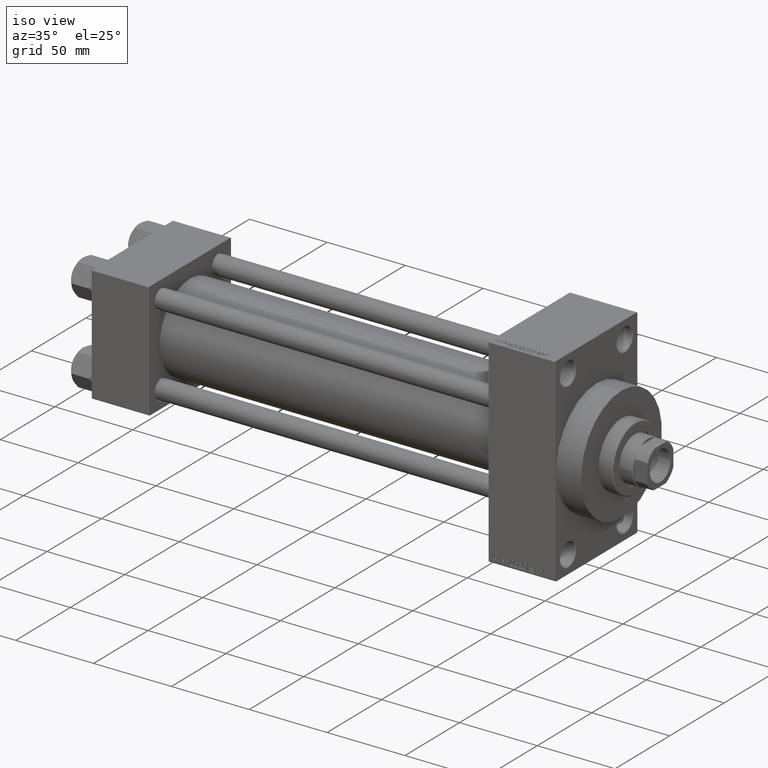
[diagram: clean part render]
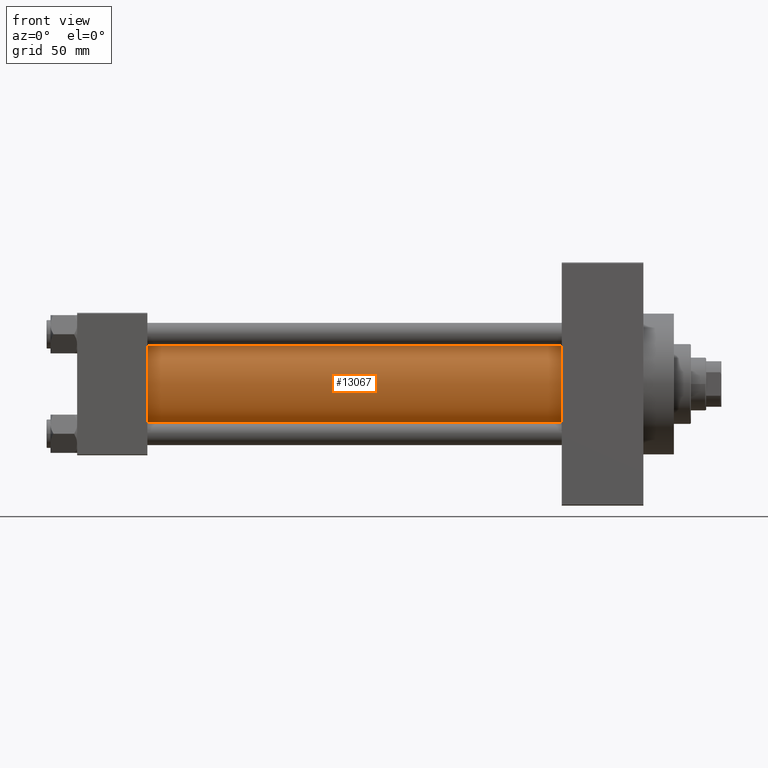
[diagram: tour spotlight — one face highlighted and labeled with its STEP entity id]
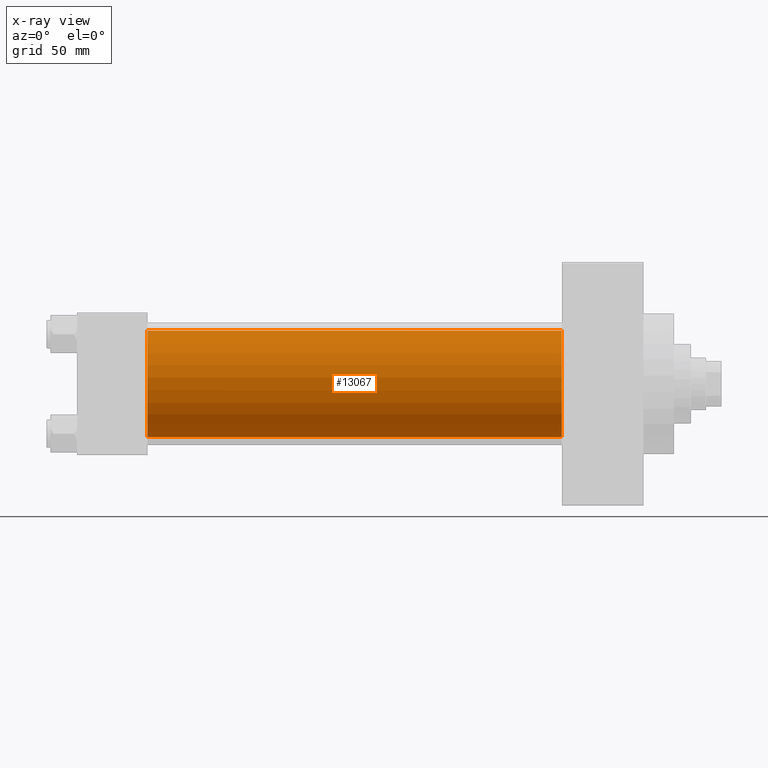
[diagram: x-ray of the same camera — body ghosted, this tour face saturated]
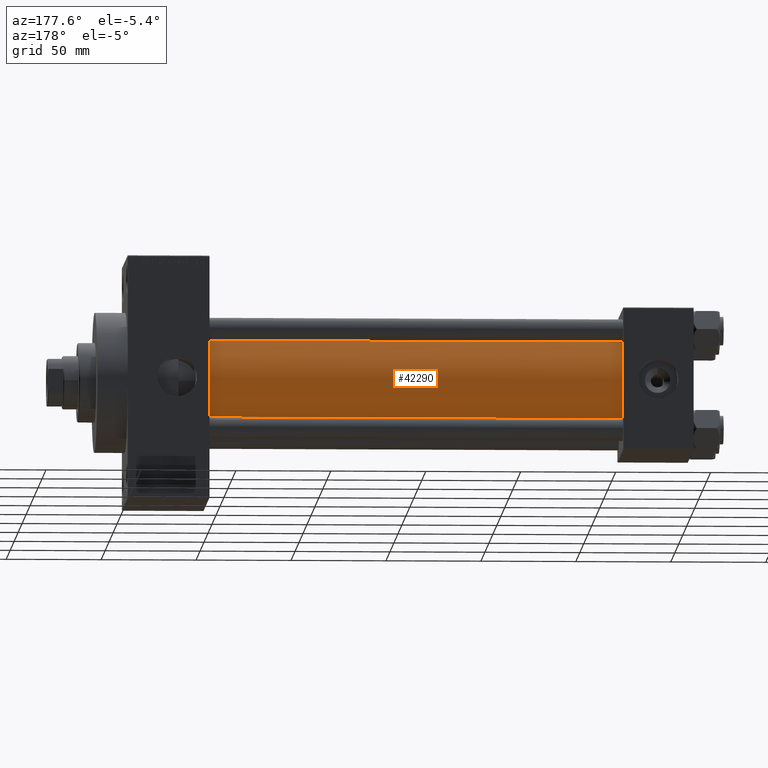
[diagram: tour spotlight — one face highlighted and labeled with its STEP entity id]
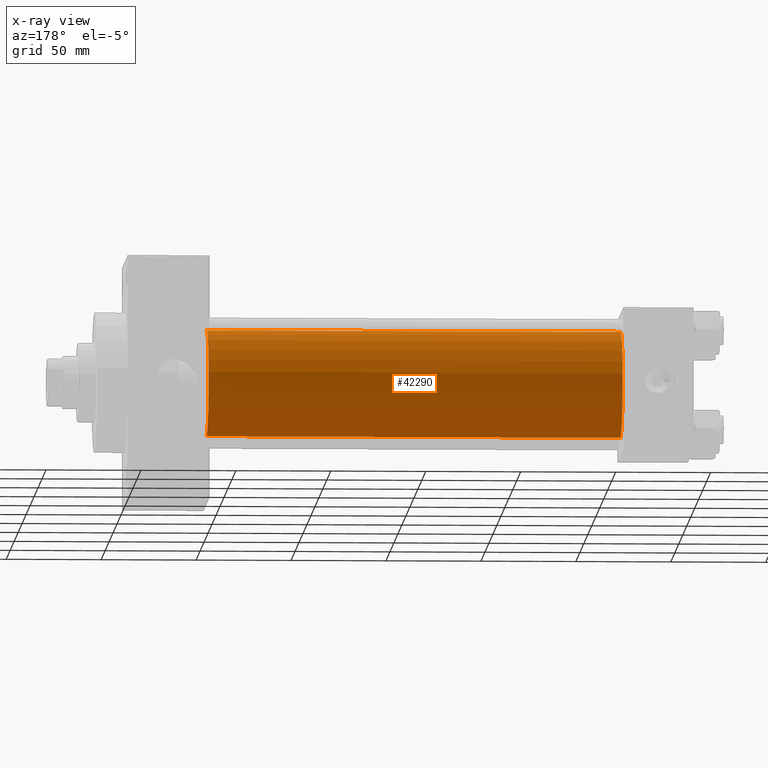
[diagram: x-ray of the same camera — body ghosted, this tour face saturated]
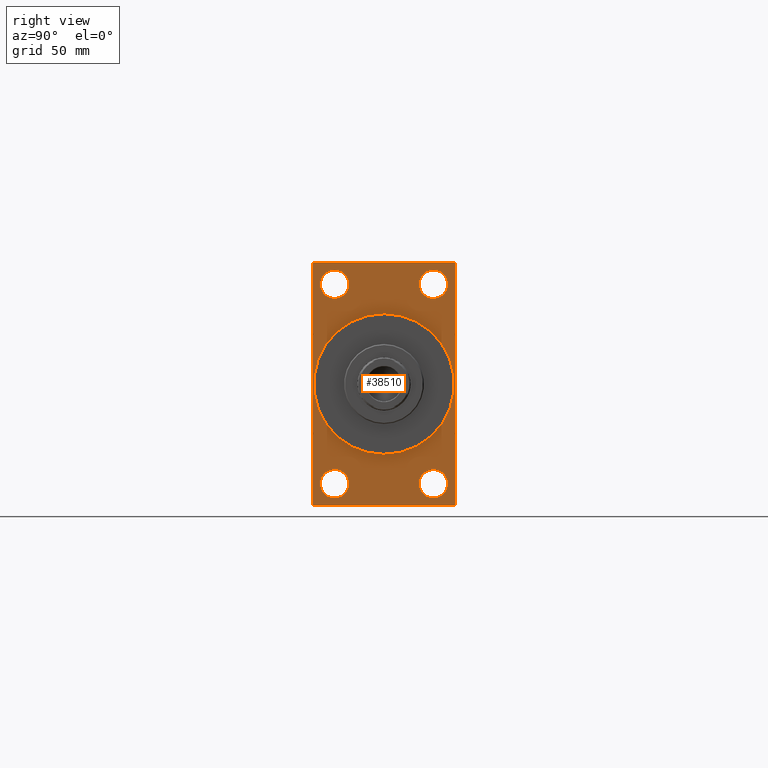
[diagram: tour spotlight — one face highlighted and labeled with its STEP entity id]
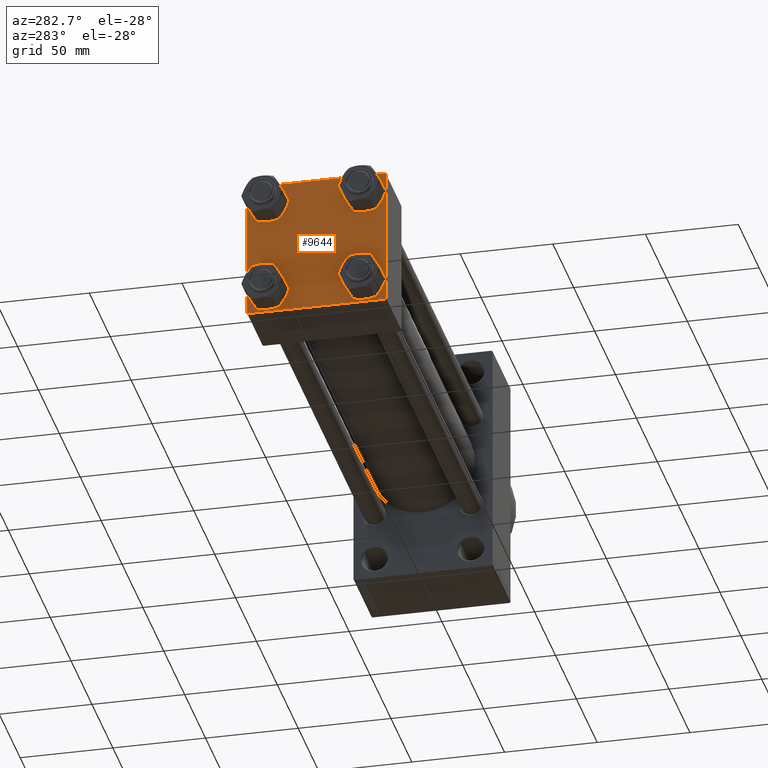
[diagram: tour spotlight — one face highlighted and labeled with its STEP entity id]
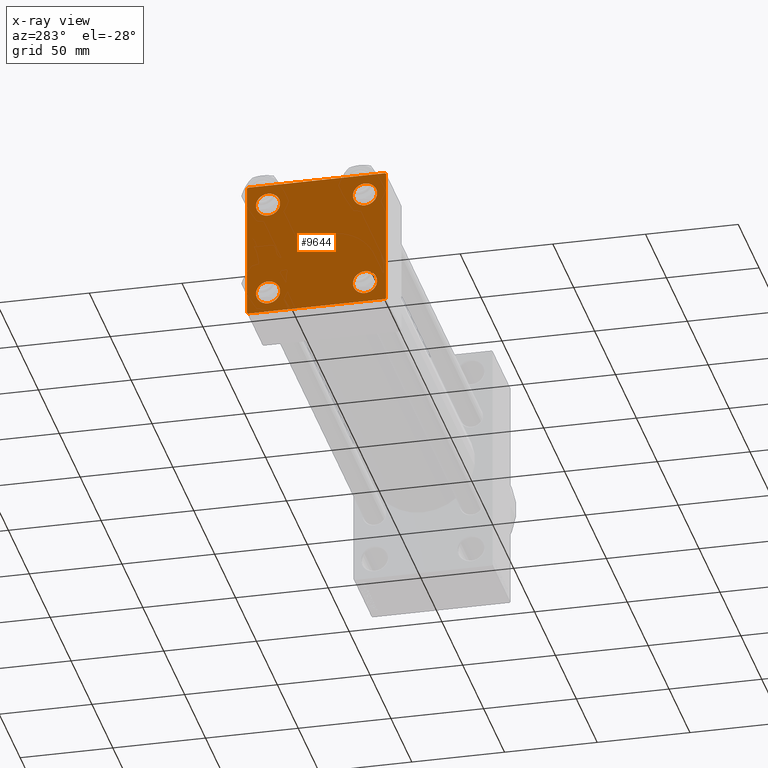
[diagram: x-ray of the same camera — body ghosted, this tour face saturated]
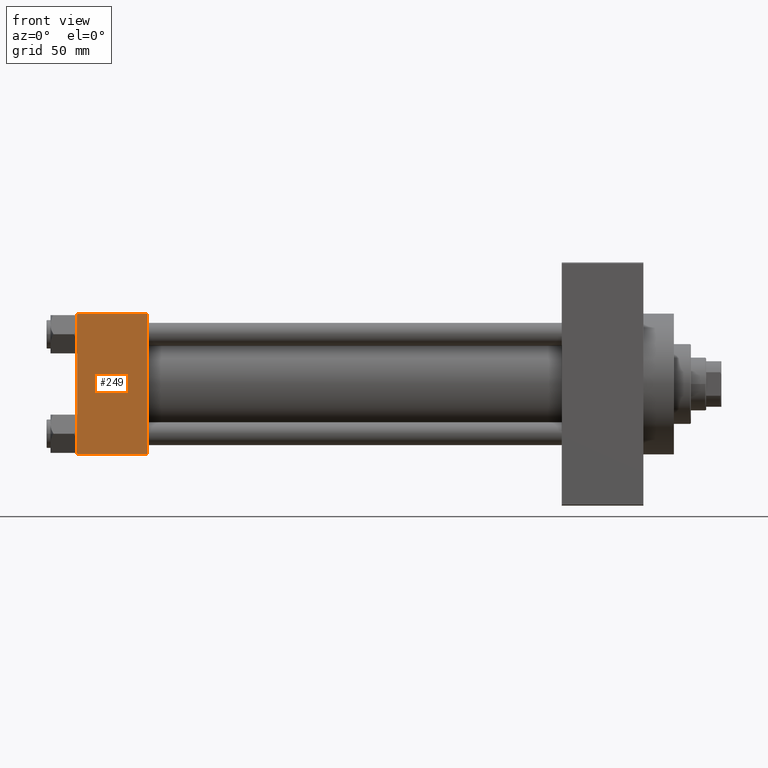
[diagram: tour spotlight — one face highlighted and labeled with its STEP entity id]
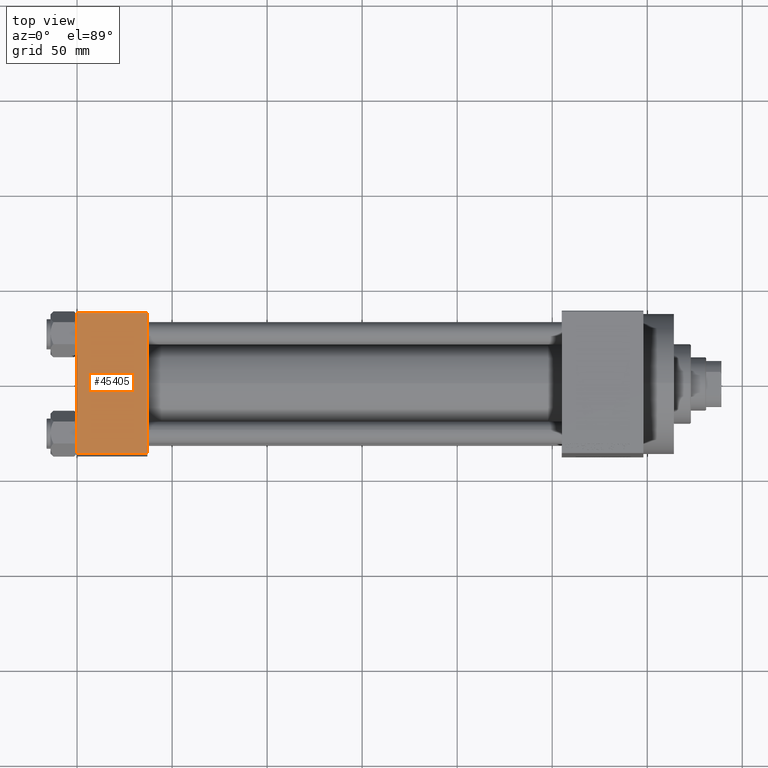
[diagram: tour spotlight — one face highlighted and labeled with its STEP entity id]
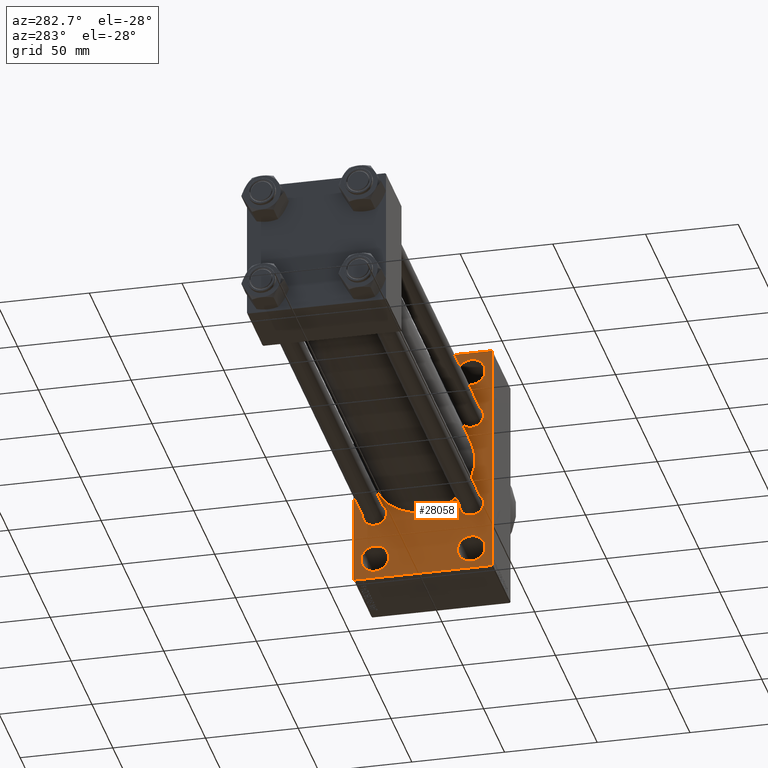
[diagram: tour spotlight — one face highlighted and labeled with its STEP entity id]
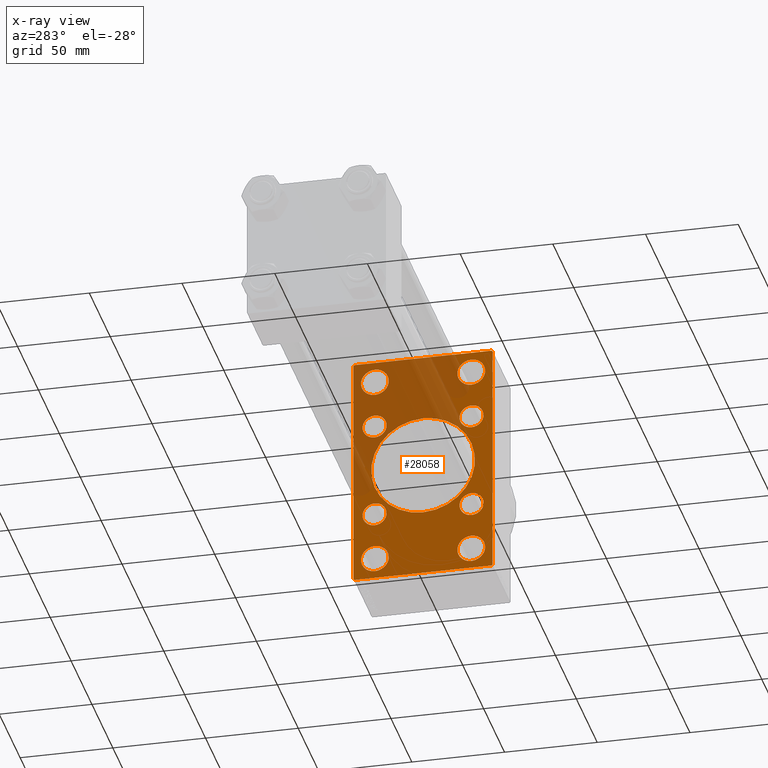
[diagram: x-ray of the same camera — body ghosted, this tour face saturated]
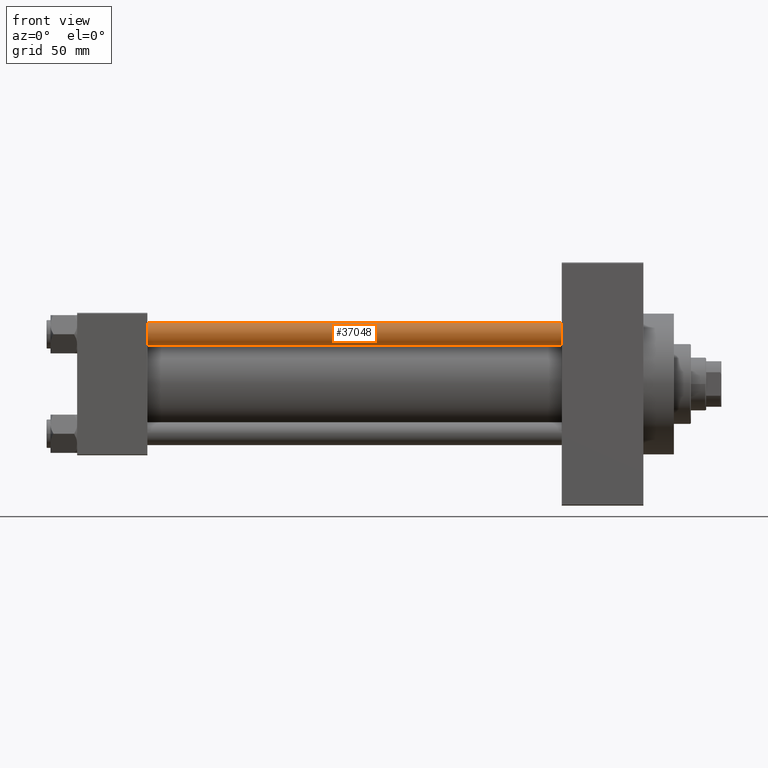
[diagram: tour spotlight — one face highlighted and labeled with its STEP entity id]
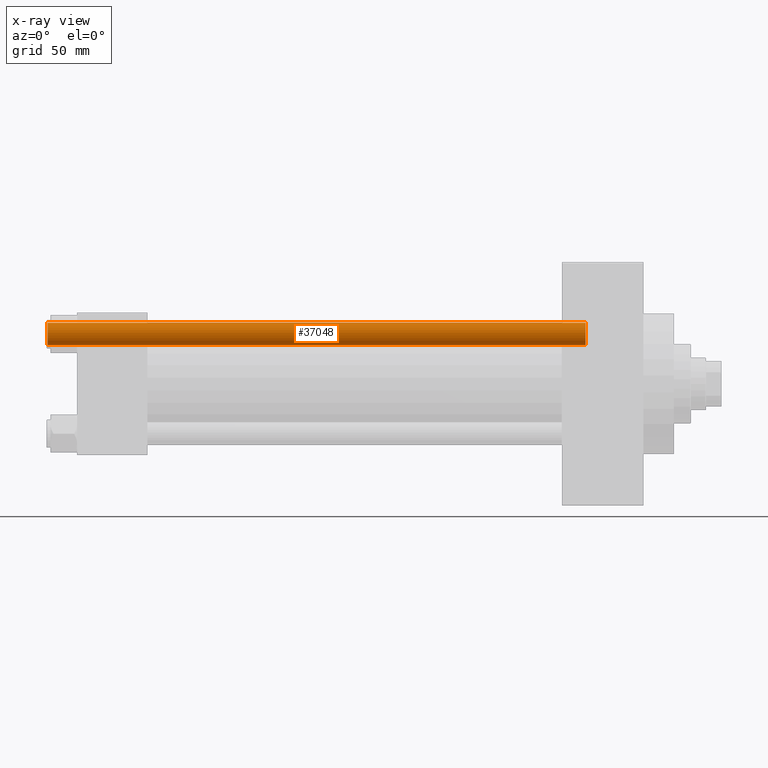
[diagram: x-ray of the same camera — body ghosted, this tour face saturated]
A machine part: a face-by-face anatomy tour. The part has 1104 B-rep faces; the first image is the clean iso view, then the 8 largest visible faces are spotlighted one at a time (largest first), each with its STEP entity span.

Face 1 — front view, entity #13067. An x-ray twin of the same camera follows (body ghosted, this face saturated) — the face is partly hidden behind the body. In plain terms, the highlighted cylindrical surface (partial cylindrical patch) has radius 28 mm, axis along (-1, -0, -0).
Definition (entity closure, byte-faithful):
#293 = CARTESIAN_POINT ( 'NONE',  ( 255.0000000000000000, -2.602085213965210642E-15, 28.00000000000000000 ) ) ;
#2420 = DIRECTION ( 'NONE',  ( 0.000000000000000000, 0.000000000000000000, 1.000000000000000000 ) ) ;
#3944 = EDGE_CURVE ( 'NONE', #41243, #34926, #43735, .T. ) ;
#4520 = EDGE_LOOP ( 'NONE', ( #6993, #34445, #27993, #32095 ) ) ;
#5079 = VERTEX_POINT ( 'NONE', #39543 ) ;
#6001 = CARTESIAN_POINT ( 'NONE',  ( 37.00000000000000711, -2.602085213965210642E-15, 0.000000000000000000 ) ) ;
#6809 = CIRCLE ( 'NONE', #44168, 28.00000000000000000 ) ;
#6993 = ORIENTED_EDGE ( 'NONE', *, *, #7240, .F. ) ;
#7240 = EDGE_CURVE ( 'NONE', #8930, #5079, #45120, .T. ) ;
#8192 = VECTOR ( 'NONE', #11040, 1000.000000000000000 ) ;
#8930 = VERTEX_POINT ( 'NONE', #42127 ) ;
#11040 = DIRECTION ( 'NONE',  ( -1.000000000000000000, -0.000000000000000000, -0.000000000000000000 ) ) ;
#11548 = CYLINDRICAL_SURFACE ( 'NONE', #21426, 28.00000000000000000 ) ;
#12267 = DIRECTION ( 'NONE',  ( -1.000000000000000000, -0.000000000000000000, -0.000000000000000000 ) ) ;
#13067 = ADVANCED_FACE ( 'NONE', ( #25872 ), #11548, .T. ) ;
#15291 = CARTESIAN_POINT ( 'NONE',  ( 37.00000000000000711, -2.602085213965210642E-15, 28.00000000000000000 ) ) ;
#21346 = CARTESIAN_POINT ( 'NONE',  ( 255.0000000000000000, -2.602085213965210642E-15, 28.00000000000000000 ) ) ;
#21426 = AXIS2_PLACEMENT_3D ( 'NONE', #33028, #12267, #23246 ) ;
#23246 = DIRECTION ( 'NONE',  ( 0.000000000000000000, 0.000000000000000000, 1.000000000000000000 ) ) ;
#24789 = DIRECTION ( 'NONE',  ( -1.000000000000000000, -0.000000000000000000, -0.000000000000000000 ) ) ;
#25872 = FACE_OUTER_BOUND ( 'NONE', #4520, .T. ) ;
#27993 = ORIENTED_EDGE ( 'NONE', *, *, #3944, .T. ) ;
#31485 = CARTESIAN_POINT ( 'NONE',  ( 255.0000000000000000, 8.269258236473784371E-16, -28.00000000000000000 ) ) ;
#32095 = ORIENTED_EDGE ( 'NONE', *, *, #38977, .T. ) ;
#32591 = AXIS2_PLACEMENT_3D ( 'NONE', #6001, #41816, #2420 ) ;
#33028 = CARTESIAN_POINT ( 'NONE',  ( 255.0000000000000000, -2.602085213965210642E-15, 0.000000000000000000 ) ) ;
#33205 = DIRECTION ( 'NONE',  ( 1.000000000000000000, 0.000000000000000000, 0.000000000000000000 ) ) ;
#34445 = ORIENTED_EDGE ( 'NONE', *, *, #46640, .F. ) ;
#34926 = VERTEX_POINT ( 'NONE', #15291 ) ;
#37489 = CARTESIAN_POINT ( 'NONE',  ( 255.0000000000000000, -2.602085213965210642E-15, 0.000000000000000000 ) ) ;
#38977 = EDGE_CURVE ( 'NONE', #34926, #5079, #44816, .T. ) ;
#39543 = CARTESIAN_POINT ( 'NONE',  ( 37.00000000000000711, 8.269258236473784371E-16, -28.00000000000000000 ) ) ;
#40848 = DIRECTION ( 'NONE',  ( 0.000000000000000000, 0.000000000000000000, -1.000000000000000000 ) ) ;
#41243 = VERTEX_POINT ( 'NONE', #21346 ) ;
#41816 = DIRECTION ( 'NONE',  ( 1.000000000000000000, -0.000000000000000000, 0.000000000000000000 ) ) ;
#42127 = CARTESIAN_POINT ( 'NONE',  ( 255.0000000000000000, 8.269258236473784371E-16, -28.00000000000000000 ) ) ;
#43735 = LINE ( 'NONE', #293, #8192 ) ;
#44168 = AXIS2_PLACEMENT_3D ( 'NONE', #37489, #33205, #40848 ) ;
#44816 = CIRCLE ( 'NONE', #32591, 28.00000000000000000 ) ;
#45120 = LINE ( 'NONE', #31485, #47189 ) ;
#46640 = EDGE_CURVE ( 'NONE', #41243, #8930, #6809, .T. ) ;
#47189 = VECTOR ( 'NONE', #24789, 1000.000000000000000 ) ;

Face 2 — auxiliary view, entity #42290. An x-ray twin of the same camera follows (body ghosted, this face saturated) — the face is partly hidden behind the body. In plain terms, the highlighted cylindrical surface (partial cylindrical patch) has radius 28 mm, axis along (-1, -0, -0).
Definition (entity closure, byte-faithful):
#255 = AXIS2_PLACEMENT_3D ( 'NONE', #46809, #24163, #28666 ) ;
#293 = CARTESIAN_POINT ( 'NONE',  ( 255.0000000000000000, -2.602085213965210642E-15, 28.00000000000000000 ) ) ;
#1173 = CIRCLE ( 'NONE', #29340, 28.00000000000000000 ) ;
#3287 = CIRCLE ( 'NONE', #255, 28.00000000000000000 ) ;
#3944 = EDGE_CURVE ( 'NONE', #41243, #34926, #43735, .T. ) ;
#5079 = VERTEX_POINT ( 'NONE', #39543 ) ;
#5312 = AXIS2_PLACEMENT_3D ( 'NONE', #29033, #42899, #7082 ) ;
#7082 = DIRECTION ( 'NONE',  ( 0.000000000000000000, 0.000000000000000000, 1.000000000000000000 ) ) ;
#7240 = EDGE_CURVE ( 'NONE', #8930, #5079, #45120, .T. ) ;
#8192 = VECTOR ( 'NONE', #11040, 1000.000000000000000 ) ;
#8930 = VERTEX_POINT ( 'NONE', #42127 ) ;
#10706 = ORIENTED_EDGE ( 'NONE', *, *, #32280, .T. ) ;
#11040 = DIRECTION ( 'NONE',  ( -1.000000000000000000, -0.000000000000000000, -0.000000000000000000 ) ) ;
#15291 = CARTESIAN_POINT ( 'NONE',  ( 37.00000000000000711, -2.602085213965210642E-15, 28.00000000000000000 ) ) ;
#15381 = ORIENTED_EDGE ( 'NONE', *, *, #3944, .F. ) ;
#17823 = CYLINDRICAL_SURFACE ( 'NONE', #5312, 28.00000000000000000 ) ;
#21127 = EDGE_CURVE ( 'NONE', #8930, #41243, #3287, .T. ) ;
#21346 = CARTESIAN_POINT ( 'NONE',  ( 255.0000000000000000, -2.602085213965210642E-15, 28.00000000000000000 ) ) ;
#24163 = DIRECTION ( 'NONE',  ( 1.000000000000000000, 0.000000000000000000, 0.000000000000000000 ) ) ;
#24789 = DIRECTION ( 'NONE',  ( -1.000000000000000000, -0.000000000000000000, -0.000000000000000000 ) ) ;
#25230 = FACE_OUTER_BOUND ( 'NONE', #28809, .T. ) ;
#28666 = DIRECTION ( 'NONE',  ( 0.000000000000000000, 0.000000000000000000, -1.000000000000000000 ) ) ;
#28809 = EDGE_LOOP ( 'NONE', ( #32971, #46996, #10706, #15381 ) ) ;
#29033 = CARTESIAN_POINT ( 'NONE',  ( 255.0000000000000000, -2.602085213965210642E-15, 0.000000000000000000 ) ) ;
#29340 = AXIS2_PLACEMENT_3D ( 'NONE', #40216, #29718, #36151 ) ;
#29718 = DIRECTION ( 'NONE',  ( 1.000000000000000000, -0.000000000000000000, 0.000000000000000000 ) ) ;
#31485 = CARTESIAN_POINT ( 'NONE',  ( 255.0000000000000000, 8.269258236473784371E-16, -28.00000000000000000 ) ) ;
#32280 = EDGE_CURVE ( 'NONE', #5079, #34926, #1173, .T. ) ;
#32971 = ORIENTED_EDGE ( 'NONE', *, *, #21127, .F. ) ;
#34926 = VERTEX_POINT ( 'NONE', #15291 ) ;
#36151 = DIRECTION ( 'NONE',  ( 0.000000000000000000, 0.000000000000000000, 1.000000000000000000 ) ) ;
#39543 = CARTESIAN_POINT ( 'NONE',  ( 37.00000000000000711, 8.269258236473784371E-16, -28.00000000000000000 ) ) ;
#40216 = CARTESIAN_POINT ( 'NONE',  ( 37.00000000000000711, -2.602085213965210642E-15, 0.000000000000000000 ) ) ;
#41243 = VERTEX_POINT ( 'NONE', #21346 ) ;
#42127 = CARTESIAN_POINT ( 'NONE',  ( 255.0000000000000000, 8.269258236473784371E-16, -28.00000000000000000 ) ) ;
#42290 = ADVANCED_FACE ( 'NONE', ( #25230 ), #17823, .T. ) ;
#42899 = DIRECTION ( 'NONE',  ( -1.000000000000000000, -0.000000000000000000, -0.000000000000000000 ) ) ;
#43735 = LINE ( 'NONE', #293, #8192 ) ;
#45120 = LINE ( 'NONE', #31485, #47189 ) ;
#46809 = CARTESIAN_POINT ( 'NONE',  ( 255.0000000000000000, -2.602085213965210642E-15, 0.000000000000000000 ) ) ;
#46996 = ORIENTED_EDGE ( 'NONE', *, *, #7240, .T. ) ;
#47189 = VECTOR ( 'NONE', #24789, 1000.000000000000000 ) ;

Face 3 — right view, entity #38510. In plain terms, the highlighted planar face has unit normal (-1, 0, 0).
Definition (entity closure, byte-faithful):
#17 = CARTESIAN_POINT ( 'NONE',  ( 298.0000000000000000, 37.49999999999999289, -63.50000000000001421 ) ) ;
#446 = VERTEX_POINT ( 'NONE', #37717 ) ;
#1097 = DIRECTION ( 'NONE',  ( 0.000000000000000000, -0.7071067811865671127, 0.7071067811865279218 ) ) ;
#1199 = EDGE_CURVE ( 'NONE', #28117, #28860, #41042, .T. ) ;
#1337 = LINE ( 'NONE', #19964, #13211 ) ;
#1362 = DIRECTION ( 'NONE',  ( 0.000000000000000000, -5.421010862427522170E-17, -1.000000000000000000 ) ) ;
#1402 = VERTEX_POINT ( 'NONE', #25014 ) ;
#1846 = CARTESIAN_POINT ( 'NONE',  ( 298.0000000000000000, -37.49999999999999289, 63.49999999999994316 ) ) ;
#1873 = LINE ( 'NONE', #16439, #43732 ) ;
#1913 = CARTESIAN_POINT ( 'NONE',  ( 298.0000000000000000, -36.99999999999995737, 63.99999999999997158 ) ) ;
#2070 = CARTESIAN_POINT ( 'NONE',  ( 298.0000000000000000, 26.00000000000000000, 45.00000000000004263 ) ) ;
#2085 = VERTEX_POINT ( 'NONE', #41339 ) ;
#2505 = DIRECTION ( 'NONE',  ( 0.000000000000000000, -1.000000000000000000, -1.850371707708594563E-16 ) ) ;
#3286 = FACE_OUTER_BOUND ( 'NONE', #26419, .T. ) ;
#3433 = DIRECTION ( 'NONE',  ( 0.000000000000000000, 0.000000000000000000, 1.000000000000000000 ) ) ;
#3528 = CARTESIAN_POINT ( 'NONE',  ( 298.0000000000000000, 0.000000000000000000, 0.000000000000000000 ) ) ;
#3748 = CARTESIAN_POINT ( 'NONE',  ( 298.0000000000000000, 26.00000000000000000, 52.49999999999999289 ) ) ;
#4761 = AXIS2_PLACEMENT_3D ( 'NONE', #42440, #13786, #46253 ) ;
#4992 = DIRECTION ( 'NONE',  ( -1.000000000000000000, 0.000000000000000000, -0.000000000000000000 ) ) ;
#5437 = CARTESIAN_POINT ( 'NONE',  ( 298.0000000000000000, 37.50000000000000000, 63.99999999999998579 ) ) ;
#6000 = AXIS2_PLACEMENT_3D ( 'NONE', #11552, #40672, #3433 ) ;
#6154 = VERTEX_POINT ( 'NONE', #7581 ) ;
#6163 = ORIENTED_EDGE ( 'NONE', *, *, #35029, .F. ) ;
#6602 = CARTESIAN_POINT ( 'NONE',  ( 298.0000000000000000, 26.00000000000000000, 52.49999999999999289 ) ) ;
#6974 = CIRCLE ( 'NONE', #27561, 37.00000000000000000 ) ;
#7102 = FACE_BOUND ( 'NONE', #32121, .T. ) ;
#7326 = DIRECTION ( 'NONE',  ( 0.000000000000000000, 0.000000000000000000, 1.000000000000000000 ) ) ;
#7581 = CARTESIAN_POINT ( 'NONE',  ( 298.0000000000000000, 26.00000000000000000, -45.00000000000004263 ) ) ;
#7611 = ORIENTED_EDGE ( 'NONE', *, *, #13847, .T. ) ;
#7620 = ORIENTED_EDGE ( 'NONE', *, *, #34658, .T. ) ;
#7674 = DIRECTION ( 'NONE',  ( -0.000000000000000000, 0.7071067811865376918, 0.7071067811865573427 ) ) ;
#7846 = AXIS2_PLACEMENT_3D ( 'NONE', #31874, #28284, #45502 ) ;
#8801 = CARTESIAN_POINT ( 'NONE',  ( 298.0000000000000000, -37.49999999999999289, 63.99999999999997158 ) ) ;
#9294 = EDGE_CURVE ( 'NONE', #45746, #41026, #41916, .T. ) ;
#9714 = AXIS2_PLACEMENT_3D ( 'NONE', #3528, #24315, #18086 ) ;
#9723 = DIRECTION ( 'NONE',  ( 0.000000000000000000, 0.000000000000000000, 1.000000000000000000 ) ) ;
#9839 = EDGE_CURVE ( 'NONE', #6154, #446, #44204, .T. ) ;
#10223 = FACE_BOUND ( 'NONE', #22852, .T. ) ;
#10409 = VERTEX_POINT ( 'NONE', #19925 ) ;
#10455 = LINE ( 'NONE', #28587, #31723 ) ;
#10662 = AXIS2_PLACEMENT_3D ( 'NONE', #42449, #16684, #17379 ) ;
#11325 = EDGE_LOOP ( 'NONE', ( #31217, #46282 ) ) ;
#11552 = CARTESIAN_POINT ( 'NONE',  ( 298.0000000000000000, -25.99999999999999645, 52.50000000000000000 ) ) ;
#11668 = CARTESIAN_POINT ( 'NONE',  ( 298.0000000000000000, -25.99999999999999645, -45.00000000000004263 ) ) ;
#12284 = ORIENTED_EDGE ( 'NONE', *, *, #9294, .T. ) ;
#13057 = EDGE_LOOP ( 'NONE', ( #17483, #34834 ) ) ;
#13082 = VECTOR ( 'NONE', #2505, 1000.000000000000000 ) ;
#13211 = VECTOR ( 'NONE', #1097, 1000.000000000000000 ) ;
#13459 = AXIS2_PLACEMENT_3D ( 'NONE', #43277, #17984, #21332 ) ;
#13753 = EDGE_CURVE ( 'NONE', #28860, #28117, #6974, .T. ) ;
#13786 = DIRECTION ( 'NONE',  ( -1.000000000000000000, 0.000000000000000000, -0.000000000000000000 ) ) ;
#13787 = ORIENTED_EDGE ( 'NONE', *, *, #36298, .T. ) ;
#13804 = DIRECTION ( 'NONE',  ( 0.000000000000000000, -1.000000000000000000, -1.850371707708594563E-16 ) ) ;
#13847 = EDGE_CURVE ( 'NONE', #2085, #44818, #24229, .T. ) ;
#14822 = LINE ( 'NONE', #17, #16632 ) ;
#14892 = EDGE_CURVE ( 'NONE', #46852, #27860, #31415, .T. ) ;
#14984 = EDGE_CURVE ( 'NONE', #35971, #38546, #37515, .T. ) ;
#16439 = CARTESIAN_POINT ( 'NONE',  ( 298.0000000000000000, -37.49999999999999289, 63.49999999999994316 ) ) ;
#16632 = VECTOR ( 'NONE', #7674, 1000.000000000000114 ) ;
#16684 = DIRECTION ( 'NONE',  ( -1.000000000000000000, 0.000000000000000000, -0.000000000000000000 ) ) ;
#16733 = EDGE_CURVE ( 'NONE', #446, #6154, #40516, .T. ) ;
#16776 = CARTESIAN_POINT ( 'NONE',  ( 298.0000000000000000, -36.99999999999999289, -64.00000000000001421 ) ) ;
#17379 = DIRECTION ( 'NONE',  ( 0.000000000000000000, 0.000000000000000000, 1.000000000000000000 ) ) ;
#17483 = ORIENTED_EDGE ( 'NONE', *, *, #16733, .T. ) ;
#17883 = CARTESIAN_POINT ( 'NONE',  ( 298.0000000000000000, -25.99999999999999645, 59.99999999999995026 ) ) ;
#17984 = DIRECTION ( 'NONE',  ( -1.000000000000000000, 0.000000000000000000, -0.000000000000000000 ) ) ;
#17989 = VECTOR ( 'NONE', #28667, 1000.000000000000000 ) ;
#18086 = DIRECTION ( 'NONE',  ( -0.000000000000000000, 0.000000000000000000, 1.000000000000000000 ) ) ;
#18916 = VERTEX_POINT ( 'NONE', #28482 ) ;
#19521 = LINE ( 'NONE', #5437, #24104 ) ;
#19749 = EDGE_CURVE ( 'NONE', #38546, #35971, #34517, .T. ) ;
#19785 = ORIENTED_EDGE ( 'NONE', *, *, #14892, .T. ) ;
#19910 = DIRECTION ( 'NONE',  ( -1.000000000000000000, 0.000000000000000000, -0.000000000000000000 ) ) ;
#19925 = CARTESIAN_POINT ( 'NONE',  ( 298.0000000000000000, -37.49999999999999289, -63.50000000000002842 ) ) ;
#19964 = CARTESIAN_POINT ( 'NONE',  ( 298.0000000000000000, 36.99999999999991473, 63.99999999999998579 ) ) ;
#20657 = CARTESIAN_POINT ( 'NONE',  ( 298.0000000000000000, 37.50000000000000000, 63.99999999999998579 ) ) ;
#20709 = EDGE_CURVE ( 'NONE', #18916, #2085, #1337, .T. ) ;
#21136 = EDGE_LOOP ( 'NONE', ( #40904, #31972 ) ) ;
#21332 = DIRECTION ( 'NONE',  ( 0.000000000000000000, 0.000000000000000000, 1.000000000000000000 ) ) ;
#21551 = AXIS2_PLACEMENT_3D ( 'NONE', #6602, #28779, #9723 ) ;
#21664 = FACE_BOUND ( 'NONE', #11325, .T. ) ;
#21716 = EDGE_CURVE ( 'NONE', #36081, #10409, #37898, .T. ) ;
#22247 = ORIENTED_EDGE ( 'NONE', *, *, #41355, .T. ) ;
#22691 = EDGE_CURVE ( 'NONE', #44818, #36081, #1873, .T. ) ;
#22852 = EDGE_LOOP ( 'NONE', ( #13787, #19785 ) ) ;
#23939 = LINE ( 'NONE', #16776, #17989 ) ;
#24104 = VECTOR ( 'NONE', #1362, 1000.000000000000000 ) ;
#24229 = LINE ( 'NONE', #20657, #13082 ) ;
#24266 = AXIS2_PLACEMENT_3D ( 'NONE', #43708, #47052, #32729 ) ;
#24315 = DIRECTION ( 'NONE',  ( -1.000000000000000000, 0.000000000000000000, -0.000000000000000000 ) ) ;
#24697 = CARTESIAN_POINT ( 'NONE',  ( 298.0000000000000000, 0.000000000000000000, 0.000000000000000000 ) ) ;
#25014 = CARTESIAN_POINT ( 'NONE',  ( 298.0000000000000000, 37.49999999999999289, -63.50000000000001421 ) ) ;
#25485 = CARTESIAN_POINT ( 'NONE',  ( 298.0000000000000000, 26.00000000000000000, 59.99999999999994316 ) ) ;
#26419 = EDGE_LOOP ( 'NONE', ( #37388, #7620, #6163, #26440, #35507, #39195, #7611, #27470 ) ) ;
#26440 = ORIENTED_EDGE ( 'NONE', *, *, #40656, .T. ) ;
#27141 = CARTESIAN_POINT ( 'NONE',  ( 298.0000000000000000, -36.99999999999999289, -64.00000000000001421 ) ) ;
#27470 = ORIENTED_EDGE ( 'NONE', *, *, #22691, .T. ) ;
#27561 = AXIS2_PLACEMENT_3D ( 'NONE', #24697, #27573, #42139 ) ;
#27573 = DIRECTION ( 'NONE',  ( 1.000000000000000000, 0.000000000000000000, 0.000000000000000000 ) ) ;
#27860 = VERTEX_POINT ( 'NONE', #45412 ) ;
#28117 = VERTEX_POINT ( 'NONE', #44422 ) ;
#28284 = DIRECTION ( 'NONE',  ( -1.000000000000000000, 0.000000000000000000, -0.000000000000000000 ) ) ;
#28482 = CARTESIAN_POINT ( 'NONE',  ( 298.0000000000000000, 37.50000000000000000, 63.49999999999992895 ) ) ;
#28587 = CARTESIAN_POINT ( 'NONE',  ( 298.0000000000000000, 37.49999999999999289, -64.00000000000000000 ) ) ;
#28667 = DIRECTION ( 'NONE',  ( 0.000000000000000000, 0.7071067811865573427, -0.7071067811865378028 ) ) ;
#28779 = DIRECTION ( 'NONE',  ( -1.000000000000000000, 0.000000000000000000, -0.000000000000000000 ) ) ;
#28860 = VERTEX_POINT ( 'NONE', #30335 ) ;
#30059 = CARTESIAN_POINT ( 'NONE',  ( 298.0000000000000000, 37.00000000000002132, -64.00000000000000000 ) ) ;
#30335 = CARTESIAN_POINT ( 'NONE',  ( 298.0000000000000000, 0.000000000000000000, 37.00000000000000000 ) ) ;
#30529 = DIRECTION ( 'NONE',  ( -0.000000000000000000, -0.7071067811865524577, -0.7071067811865426878 ) ) ;
#31217 = ORIENTED_EDGE ( 'NONE', *, *, #14984, .T. ) ;
#31415 = CIRCLE ( 'NONE', #4761, 7.499999999999951150 ) ;
#31627 = EDGE_CURVE ( 'NONE', #18916, #1402, #19521, .T. ) ;
#31723 = VECTOR ( 'NONE', #13804, 1000.000000000000000 ) ;
#31874 = CARTESIAN_POINT ( 'NONE',  ( 298.0000000000000000, 26.00000000000000000, -52.49999999999999289 ) ) ;
#31972 = ORIENTED_EDGE ( 'NONE', *, *, #1199, .F. ) ;
#32121 = EDGE_LOOP ( 'NONE', ( #22247, #12284 ) ) ;
#32729 = DIRECTION ( 'NONE',  ( 0.000000000000000000, 0.000000000000000000, -1.000000000000000000 ) ) ;
#33071 = VECTOR ( 'NONE', #37435, 1000.000000000000000 ) ;
#34517 = CIRCLE ( 'NONE', #21551, 7.499999999999951150 ) ;
#34560 = CARTESIAN_POINT ( 'NONE',  ( 298.0000000000000000, -25.99999999999999645, 52.50000000000000000 ) ) ;
#34658 = EDGE_CURVE ( 'NONE', #10409, #35230, #23939, .T. ) ;
#34834 = ORIENTED_EDGE ( 'NONE', *, *, #9839, .T. ) ;
#35029 = EDGE_CURVE ( 'NONE', #42917, #35230, #10455, .T. ) ;
#35230 = VERTEX_POINT ( 'NONE', #27141 ) ;
#35507 = ORIENTED_EDGE ( 'NONE', *, *, #31627, .F. ) ;
#35971 = VERTEX_POINT ( 'NONE', #2070 ) ;
#35978 = FACE_BOUND ( 'NONE', #13057, .T. ) ;
#36081 = VERTEX_POINT ( 'NONE', #1846 ) ;
#36208 = PLANE ( 'NONE',  #9714 ) ;
#36298 = EDGE_CURVE ( 'NONE', #27860, #46852, #46979, .T. ) ;
#36752 = AXIS2_PLACEMENT_3D ( 'NONE', #3748, #19910, #7326 ) ;
#37388 = ORIENTED_EDGE ( 'NONE', *, *, #21716, .T. ) ;
#37435 = DIRECTION ( 'NONE',  ( 0.000000000000000000, 0.000000000000000000, -1.000000000000000000 ) ) ;
#37515 = CIRCLE ( 'NONE', #36752, 7.499999999999951150 ) ;
#37660 = DIRECTION ( 'NONE',  ( 0.000000000000000000, 0.000000000000000000, 1.000000000000000000 ) ) ;
#37717 = CARTESIAN_POINT ( 'NONE',  ( 298.0000000000000000, 26.00000000000000000, -59.99999999999994316 ) ) ;
#37898 = LINE ( 'NONE', #8801, #33071 ) ;
#38510 = ADVANCED_FACE ( 'NONE', ( #7102, #10223, #35978, #21664, #46964, #3286 ), #36208, .F. ) ;
#38546 = VERTEX_POINT ( 'NONE', #25485 ) ;
#39195 = ORIENTED_EDGE ( 'NONE', *, *, #20709, .T. ) ;
#40516 = CIRCLE ( 'NONE', #7846, 7.499999999999951150 ) ;
#40656 = EDGE_CURVE ( 'NONE', #42917, #1402, #14822, .T. ) ;
#40672 = DIRECTION ( 'NONE',  ( -1.000000000000000000, 0.000000000000000000, -0.000000000000000000 ) ) ;
#40904 = ORIENTED_EDGE ( 'NONE', *, *, #13753, .F. ) ;
#41026 = VERTEX_POINT ( 'NONE', #45485 ) ;
#41042 = CIRCLE ( 'NONE', #24266, 37.00000000000000000 ) ;
#41339 = CARTESIAN_POINT ( 'NONE',  ( 298.0000000000000000, 36.99999999999991473, 63.99999999999998579 ) ) ;
#41355 = EDGE_CURVE ( 'NONE', #41026, #45746, #45635, .T. ) ;
#41916 = CIRCLE ( 'NONE', #43434, 7.499999999999951150 ) ;
#42139 = DIRECTION ( 'NONE',  ( 0.000000000000000000, 0.000000000000000000, -1.000000000000000000 ) ) ;
#42440 = CARTESIAN_POINT ( 'NONE',  ( 298.0000000000000000, -25.99999999999999645, -52.49999999999999289 ) ) ;
#42449 = CARTESIAN_POINT ( 'NONE',  ( 298.0000000000000000, 26.00000000000000000, -52.49999999999999289 ) ) ;
#42917 = VERTEX_POINT ( 'NONE', #30059 ) ;
#43277 = CARTESIAN_POINT ( 'NONE',  ( 298.0000000000000000, -25.99999999999999645, -52.49999999999999289 ) ) ;
#43434 = AXIS2_PLACEMENT_3D ( 'NONE', #34560, #4992, #37660 ) ;
#43708 = CARTESIAN_POINT ( 'NONE',  ( 298.0000000000000000, 0.000000000000000000, 0.000000000000000000 ) ) ;
#43732 = VECTOR ( 'NONE', #30529, 1000.000000000000000 ) ;
#44204 = CIRCLE ( 'NONE', #10662, 7.499999999999951150 ) ;
#44422 = CARTESIAN_POINT ( 'NONE',  ( 298.0000000000000000, 4.531193156845206793E-15, -37.00000000000000000 ) ) ;
#44818 = VERTEX_POINT ( 'NONE', #1913 ) ;
#45412 = CARTESIAN_POINT ( 'NONE',  ( 298.0000000000000000, -25.99999999999999645, -59.99999999999994316 ) ) ;
#45485 = CARTESIAN_POINT ( 'NONE',  ( 298.0000000000000000, -25.99999999999999645, 45.00000000000004974 ) ) ;
#45502 = DIRECTION ( 'NONE',  ( 0.000000000000000000, 0.000000000000000000, 1.000000000000000000 ) ) ;
#45635 = CIRCLE ( 'NONE', #6000, 7.499999999999951150 ) ;
#45746 = VERTEX_POINT ( 'NONE', #17883 ) ;
#46253 = DIRECTION ( 'NONE',  ( 0.000000000000000000, 0.000000000000000000, 1.000000000000000000 ) ) ;
#46282 = ORIENTED_EDGE ( 'NONE', *, *, #19749, .T. ) ;
#46852 = VERTEX_POINT ( 'NONE', #11668 ) ;
#46964 = FACE_BOUND ( 'NONE', #21136, .T. ) ;
#46979 = CIRCLE ( 'NONE', #13459, 7.499999999999951150 ) ;
#47052 = DIRECTION ( 'NONE',  ( 1.000000000000000000, 0.000000000000000000, 0.000000000000000000 ) ) ;

Face 4 — auxiliary view, entity #9644. An x-ray twin of the same camera follows (body ghosted, this face saturated) — the face is partly hidden behind the body. In plain terms, the highlighted planar face has unit normal (-1, 0, 0).
Definition (entity closure, byte-faithful):
#314 = ORIENTED_EDGE ( 'NONE', *, *, #13761, .T. ) ;
#625 = VERTEX_POINT ( 'NONE', #30803 ) ;
#1136 = DIRECTION ( 'NONE',  ( 0.000000000000000000, 0.000000000000000000, 1.000000000000000000 ) ) ;
#1653 = DIRECTION ( 'NONE',  ( -0.000000000000000000, 0.000000000000000000, 1.000000000000000000 ) ) ;
#2040 = EDGE_CURVE ( 'NONE', #37599, #17432, #5303, .T. ) ;
#2596 = CARTESIAN_POINT ( 'NONE',  ( 0.000000000000000000, -37.50000000000000711, 37.49999999999999289 ) ) ;
#2850 = CARTESIAN_POINT ( 'NONE',  ( 0.000000000000000000, -26.14999999999999147, 32.65000000000003411 ) ) ;
#3719 = EDGE_CURVE ( 'NONE', #30225, #19381, #12004, .T. ) ;
#4135 = FACE_BOUND ( 'NONE', #46481, .T. ) ;
#4165 = VERTEX_POINT ( 'NONE', #2850 ) ;
#4905 = DIRECTION ( 'NONE',  ( 1.000000000000000000, -0.000000000000000000, 0.000000000000000000 ) ) ;
#5303 = LINE ( 'NONE', #31293, #15900 ) ;
#5858 = DIRECTION ( 'NONE',  ( 1.000000000000000000, -0.000000000000000000, 0.000000000000000000 ) ) ;
#6066 = VECTOR ( 'NONE', #8504, 1000.000000000000114 ) ;
#6190 = DIRECTION ( 'NONE',  ( -0.000000000000000000, -0.7071067811865474617, -0.7071067811865474617 ) ) ;
#6280 = ORIENTED_EDGE ( 'NONE', *, *, #39605, .T. ) ;
#6847 = ORIENTED_EDGE ( 'NONE', *, *, #29933, .T. ) ;
#7578 = ORIENTED_EDGE ( 'NONE', *, *, #37164, .T. ) ;
#8504 = DIRECTION ( 'NONE',  ( -0.000000000000000000, 0.7071067811865474617, 0.7071067811865474617 ) ) ;
#8649 = ORIENTED_EDGE ( 'NONE', *, *, #38360, .T. ) ;
#8698 = CARTESIAN_POINT ( 'NONE',  ( 0.000000000000000000, -37.00000000000000711, 37.49999999999999289 ) ) ;
#8719 = EDGE_CURVE ( 'NONE', #35395, #14980, #12318, .T. ) ;
#8887 = CIRCLE ( 'NONE', #18797, 6.500000000000015987 ) ;
#9174 = LINE ( 'NONE', #34693, #30138 ) ;
#9216 = CARTESIAN_POINT ( 'NONE',  ( 0.000000000000000000, 26.14999999999999858, -26.15000000000000213 ) ) ;
#9358 = DIRECTION ( 'NONE',  ( 0.000000000000000000, -0.7071067811865524577, 0.7071067811865426878 ) ) ;
#9552 = CARTESIAN_POINT ( 'NONE',  ( 0.000000000000000000, -26.14999999999999147, -32.65000000000002700 ) ) ;
#9644 = ADVANCED_FACE ( 'NONE', ( #11527, #36571, #4135, #26087, #40647 ), #37052, .T. ) ;
#10425 = CIRCLE ( 'NONE', #37884, 6.500000000000015987 ) ;
#11363 = VERTEX_POINT ( 'NONE', #34706 ) ;
#11527 = FACE_BOUND ( 'NONE', #31424, .T. ) ;
#11751 = CARTESIAN_POINT ( 'NONE',  ( 0.000000000000000000, 26.14999999999999858, -19.64999999999998792 ) ) ;
#12004 = CIRCLE ( 'NONE', #44783, 6.500000000000015987 ) ;
#12214 = CARTESIAN_POINT ( 'NONE',  ( 0.000000000000000000, 26.14999999999999858, 19.64999999999998437 ) ) ;
#12318 = LINE ( 'NONE', #29965, #6066 ) ;
#12767 = ORIENTED_EDGE ( 'NONE', *, *, #38864, .T. ) ;
#12943 = CARTESIAN_POINT ( 'NONE',  ( 0.000000000000000000, 26.14999999999999858, 26.15000000000000213 ) ) ;
#13017 = DIRECTION ( 'NONE',  ( 0.000000000000000000, 0.000000000000000000, 1.000000000000000000 ) ) ;
#13495 = AXIS2_PLACEMENT_3D ( 'NONE', #39286, #25688, #21396 ) ;
#13697 = CARTESIAN_POINT ( 'NONE',  ( 0.000000000000000000, 37.49999999999999289, 37.00000000000000000 ) ) ;
#13761 = EDGE_CURVE ( 'NONE', #19381, #30225, #42047, .T. ) ;
#13765 = ORIENTED_EDGE ( 'NONE', *, *, #35890, .T. ) ;
#14016 = AXIS2_PLACEMENT_3D ( 'NONE', #21019, #25538, #36027 ) ;
#14853 = CARTESIAN_POINT ( 'NONE',  ( 0.000000000000000000, 0.000000000000000000, 0.000000000000000000 ) ) ;
#14980 = VERTEX_POINT ( 'NONE', #8698 ) ;
#15900 = VECTOR ( 'NONE', #41571, 1000.000000000000000 ) ;
#16232 = CARTESIAN_POINT ( 'NONE',  ( 0.000000000000000000, -26.14999999999999147, 19.64999999999999147 ) ) ;
#16526 = DIRECTION ( 'NONE',  ( 0.000000000000000000, 0.000000000000000000, 1.000000000000000000 ) ) ;
#16544 = ORIENTED_EDGE ( 'NONE', *, *, #35713, .T. ) ;
#17153 = VECTOR ( 'NONE', #31719, 1000.000000000000000 ) ;
#17383 = VECTOR ( 'NONE', #27143, 1000.000000000000000 ) ;
#17432 = VERTEX_POINT ( 'NONE', #18807 ) ;
#18081 = ORIENTED_EDGE ( 'NONE', *, *, #8719, .T. ) ;
#18797 = AXIS2_PLACEMENT_3D ( 'NONE', #41480, #44586, #1136 ) ;
#18807 = CARTESIAN_POINT ( 'NONE',  ( 0.000000000000000000, -37.00000000000002132, -37.50000000000000711 ) ) ;
#19057 = EDGE_CURVE ( 'NONE', #21172, #41732, #41368, .T. ) ;
#19381 = VERTEX_POINT ( 'NONE', #24107 ) ;
#20747 = LINE ( 'NONE', #2596, #17153 ) ;
#20749 = AXIS2_PLACEMENT_3D ( 'NONE', #12943, #34663, #16526 ) ;
#21019 = CARTESIAN_POINT ( 'NONE',  ( 0.000000000000000000, -26.14999999999999147, 26.15000000000000924 ) ) ;
#21172 = VERTEX_POINT ( 'NONE', #32245 ) ;
#21396 = DIRECTION ( 'NONE',  ( 0.000000000000000000, 0.000000000000000000, 1.000000000000000000 ) ) ;
#21456 = AXIS2_PLACEMENT_3D ( 'NONE', #9216, #5858, #13017 ) ;
#21540 = VERTEX_POINT ( 'NONE', #9552 ) ;
#21810 = DIRECTION ( 'NONE',  ( 1.000000000000000000, -0.000000000000000000, 0.000000000000000000 ) ) ;
#22129 = ORIENTED_EDGE ( 'NONE', *, *, #19057, .T. ) ;
#22426 = CIRCLE ( 'NONE', #14016, 6.500000000000023093 ) ;
#22611 = VECTOR ( 'NONE', #6190, 1000.000000000000114 ) ;
#22710 = VECTOR ( 'NONE', #9358, 1000.000000000000000 ) ;
#23652 = EDGE_CURVE ( 'NONE', #4165, #39278, #22426, .T. ) ;
#24036 = CARTESIAN_POINT ( 'NONE',  ( 0.000000000000000000, 37.49999999999999289, 37.50000000000000000 ) ) ;
#24107 = CARTESIAN_POINT ( 'NONE',  ( 0.000000000000000000, 26.14999999999999858, -32.65000000000001990 ) ) ;
#24537 = ORIENTED_EDGE ( 'NONE', *, *, #44222, .F. ) ;
#25520 = VERTEX_POINT ( 'NONE', #13697 ) ;
#25538 = DIRECTION ( 'NONE',  ( 1.000000000000000000, -0.000000000000000000, 0.000000000000000000 ) ) ;
#25593 = DIRECTION ( 'NONE',  ( -1.000000000000000000, 0.000000000000000000, -0.000000000000000000 ) ) ;
#25688 = DIRECTION ( 'NONE',  ( 1.000000000000000000, -0.000000000000000000, 0.000000000000000000 ) ) ;
#26087 = FACE_BOUND ( 'NONE', #35788, .T. ) ;
#26664 = CARTESIAN_POINT ( 'NONE',  ( 0.000000000000000000, 36.99999999999997868, -37.50000000000000000 ) ) ;
#27143 = DIRECTION ( 'NONE',  ( 0.000000000000000000, 0.000000000000000000, -1.000000000000000000 ) ) ;
#28182 = CARTESIAN_POINT ( 'NONE',  ( 0.000000000000000000, -37.24999999999975842, -37.25000000000027001 ) ) ;
#28914 = ORIENTED_EDGE ( 'NONE', *, *, #23652, .T. ) ;
#29933 = EDGE_CURVE ( 'NONE', #41334, #25520, #9174, .T. ) ;
#29965 = CARTESIAN_POINT ( 'NONE',  ( -0.000000000000000000, -37.25000000000000000, 37.25000000000000000 ) ) ;
#30069 = CARTESIAN_POINT ( 'NONE',  ( 0.000000000000000000, 26.14999999999999858, 26.15000000000000213 ) ) ;
#30138 = VECTOR ( 'NONE', #38267, 1000.000000000000114 ) ;
#30225 = VERTEX_POINT ( 'NONE', #11751 ) ;
#30308 = DIRECTION ( 'NONE',  ( 1.000000000000000000, -0.000000000000000000, 0.000000000000000000 ) ) ;
#30436 = ORIENTED_EDGE ( 'NONE', *, *, #36946, .T. ) ;
#30803 = CARTESIAN_POINT ( 'NONE',  ( 0.000000000000000000, -26.14999999999999147, -19.64999999999999503 ) ) ;
#30929 = ORIENTED_EDGE ( 'NONE', *, *, #2040, .T. ) ;
#31051 = CIRCLE ( 'NONE', #38663, 6.500000000000023093 ) ;
#31293 = CARTESIAN_POINT ( 'NONE',  ( 0.000000000000000000, 37.49999999999999289, -37.50000000000000000 ) ) ;
#31424 = EDGE_LOOP ( 'NONE', ( #28914, #30436 ) ) ;
#31436 = EDGE_LOOP ( 'NONE', ( #6280, #16544, #30929, #12767, #34755, #18081, #24537, #6847 ) ) ;
#31719 = DIRECTION ( 'NONE',  ( 0.000000000000000000, 9.251858538542971581E-17, -1.000000000000000000 ) ) ;
#31952 = LINE ( 'NONE', #38636, #22611 ) ;
#32245 = CARTESIAN_POINT ( 'NONE',  ( 0.000000000000000000, 26.14999999999999858, 32.65000000000002700 ) ) ;
#32302 = CARTESIAN_POINT ( 'NONE',  ( 0.000000000000000000, -26.14999999999999147, -26.15000000000000924 ) ) ;
#32781 = CARTESIAN_POINT ( 'NONE',  ( 0.000000000000000000, 37.49999999999999289, 37.50000000000000000 ) ) ;
#32941 = DIRECTION ( 'NONE',  ( 0.000000000000000000, 0.000000000000000000, 1.000000000000000000 ) ) ;
#32981 = ORIENTED_EDGE ( 'NONE', *, *, #3719, .T. ) ;
#32994 = EDGE_CURVE ( 'NONE', #35395, #11363, #20747, .T. ) ;
#33032 = CARTESIAN_POINT ( 'NONE',  ( 0.000000000000000000, 36.99999999999999289, 37.50000000000000000 ) ) ;
#33501 = LINE ( 'NONE', #32781, #34223 ) ;
#33539 = AXIS2_PLACEMENT_3D ( 'NONE', #14853, #25593, #1653 ) ;
#34011 = DIRECTION ( 'NONE',  ( 0.000000000000000000, 0.000000000000000000, 1.000000000000000000 ) ) ;
#34223 = VECTOR ( 'NONE', #39697, 1000.000000000000000 ) ;
#34663 = DIRECTION ( 'NONE',  ( 1.000000000000000000, -0.000000000000000000, 0.000000000000000000 ) ) ;
#34693 = CARTESIAN_POINT ( 'NONE',  ( 0.000000000000000000, 37.24999999999999289, 37.24999999999999289 ) ) ;
#34706 = CARTESIAN_POINT ( 'NONE',  ( 0.000000000000000000, -37.50000000000000000, -37.00000000000003553 ) ) ;
#34755 = ORIENTED_EDGE ( 'NONE', *, *, #32994, .F. ) ;
#35395 = VERTEX_POINT ( 'NONE', #39743 ) ;
#35713 = EDGE_CURVE ( 'NONE', #45604, #37599, #31952, .T. ) ;
#35788 = EDGE_LOOP ( 'NONE', ( #22129, #8649 ) ) ;
#35890 = EDGE_CURVE ( 'NONE', #625, #21540, #8887, .T. ) ;
#36027 = DIRECTION ( 'NONE',  ( 0.000000000000000000, 0.000000000000000000, 1.000000000000000000 ) ) ;
#36571 = FACE_BOUND ( 'NONE', #43425, .T. ) ;
#36946 = EDGE_CURVE ( 'NONE', #39278, #4165, #40163, .T. ) ;
#37052 = PLANE ( 'NONE',  #33539 ) ;
#37164 = EDGE_CURVE ( 'NONE', #21540, #625, #10425, .T. ) ;
#37599 = VERTEX_POINT ( 'NONE', #26664 ) ;
#37884 = AXIS2_PLACEMENT_3D ( 'NONE', #32302, #21810, #43765 ) ;
#38223 = LINE ( 'NONE', #28182, #22710 ) ;
#38267 = DIRECTION ( 'NONE',  ( 0.000000000000000000, 0.7071067811865474617, -0.7071067811865474617 ) ) ;
#38360 = EDGE_CURVE ( 'NONE', #41732, #21172, #31051, .T. ) ;
#38636 = CARTESIAN_POINT ( 'NONE',  ( 0.000000000000000000, 37.24999999999998579, -37.24999999999998579 ) ) ;
#38663 = AXIS2_PLACEMENT_3D ( 'NONE', #30069, #30308, #32941 ) ;
#38864 = EDGE_CURVE ( 'NONE', #17432, #11363, #38223, .T. ) ;
#39278 = VERTEX_POINT ( 'NONE', #16232 ) ;
#39286 = CARTESIAN_POINT ( 'NONE',  ( 0.000000000000000000, -26.14999999999999147, 26.15000000000000924 ) ) ;
#39605 = EDGE_CURVE ( 'NONE', #25520, #45604, #45288, .T. ) ;
#39697 = DIRECTION ( 'NONE',  ( 0.000000000000000000, -1.000000000000000000, -9.251858538542971581E-17 ) ) ;
#39743 = CARTESIAN_POINT ( 'NONE',  ( 0.000000000000000000, -37.50000000000000711, 36.99999999999999289 ) ) ;
#40163 = CIRCLE ( 'NONE', #13495, 6.500000000000023093 ) ;
#40647 = FACE_OUTER_BOUND ( 'NONE', #31436, .T. ) ;
#41334 = VERTEX_POINT ( 'NONE', #33032 ) ;
#41368 = CIRCLE ( 'NONE', #20749, 6.500000000000023093 ) ;
#41480 = CARTESIAN_POINT ( 'NONE',  ( 0.000000000000000000, -26.14999999999999147, -26.15000000000000924 ) ) ;
#41571 = DIRECTION ( 'NONE',  ( 0.000000000000000000, -1.000000000000000000, -9.251858538542972814E-17 ) ) ;
#41641 = CARTESIAN_POINT ( 'NONE',  ( 0.000000000000000000, 26.14999999999999858, -26.15000000000000213 ) ) ;
#41732 = VERTEX_POINT ( 'NONE', #12214 ) ;
#42047 = CIRCLE ( 'NONE', #21456, 6.500000000000015987 ) ;
#42725 = CARTESIAN_POINT ( 'NONE',  ( 0.000000000000000000, 37.49999999999999289, -36.99999999999998579 ) ) ;
#43425 = EDGE_LOOP ( 'NONE', ( #13765, #7578 ) ) ;
#43765 = DIRECTION ( 'NONE',  ( 0.000000000000000000, 0.000000000000000000, 1.000000000000000000 ) ) ;
#44222 = EDGE_CURVE ( 'NONE', #41334, #14980, #33501, .T. ) ;
#44586 = DIRECTION ( 'NONE',  ( 1.000000000000000000, -0.000000000000000000, 0.000000000000000000 ) ) ;
#44783 = AXIS2_PLACEMENT_3D ( 'NONE', #41641, #4905, #34011 ) ;
#45288 = LINE ( 'NONE', #24036, #17383 ) ;
#45604 = VERTEX_POINT ( 'NONE', #42725 ) ;
#46481 = EDGE_LOOP ( 'NONE', ( #32981, #314 ) ) ;

Face 5 — front view, entity #249. In plain terms, the highlighted planar face has unit normal (0, 1, 0).
Definition (entity closure, byte-faithful):
#249 = ADVANCED_FACE ( 'NONE', ( #42298 ), #28197, .F. ) ;
#1611 = LINE ( 'NONE', #34318, #39244 ) ;
#1738 = DIRECTION ( 'NONE',  ( -0.000000000000000000, 1.000000000000000000, 9.251858538542971581E-17 ) ) ;
#2596 = CARTESIAN_POINT ( 'NONE',  ( 0.000000000000000000, -37.50000000000000711, 37.49999999999999289 ) ) ;
#6566 = ORIENTED_EDGE ( 'NONE', *, *, #33149, .T. ) ;
#11363 = VERTEX_POINT ( 'NONE', #34706 ) ;
#14207 = CARTESIAN_POINT ( 'NONE',  ( 37.00000000000000000, -37.50000000000000711, 36.99999999999999289 ) ) ;
#17008 = EDGE_CURVE ( 'NONE', #46016, #43854, #20146, .T. ) ;
#17153 = VECTOR ( 'NONE', #31719, 1000.000000000000000 ) ;
#18397 = VECTOR ( 'NONE', #35391, 1000.000000000000000 ) ;
#20118 = DIRECTION ( 'NONE',  ( 0.000000000000000000, -9.251858538542971581E-17, 1.000000000000000000 ) ) ;
#20146 = LINE ( 'NONE', #42094, #18397 ) ;
#20747 = LINE ( 'NONE', #2596, #17153 ) ;
#22634 = CARTESIAN_POINT ( 'NONE',  ( 37.00000000000000000, -37.50000000000000000, -37.00000000000003553 ) ) ;
#25265 = ORIENTED_EDGE ( 'NONE', *, *, #27539, .T. ) ;
#26206 = LINE ( 'NONE', #22634, #45341 ) ;
#27539 = EDGE_CURVE ( 'NONE', #11363, #43854, #26206, .T. ) ;
#28197 = PLANE ( 'NONE',  #45575 ) ;
#29691 = ORIENTED_EDGE ( 'NONE', *, *, #17008, .F. ) ;
#31719 = DIRECTION ( 'NONE',  ( 0.000000000000000000, 9.251858538542971581E-17, -1.000000000000000000 ) ) ;
#32994 = EDGE_CURVE ( 'NONE', #35395, #11363, #20747, .T. ) ;
#33149 = EDGE_CURVE ( 'NONE', #46016, #35395, #1611, .T. ) ;
#34318 = CARTESIAN_POINT ( 'NONE',  ( 37.00000000000000000, -37.50000000000000711, 36.99999999999999289 ) ) ;
#34439 = CARTESIAN_POINT ( 'NONE',  ( 37.00000000000000000, -37.50000000000000711, 37.49999999999999289 ) ) ;
#34706 = CARTESIAN_POINT ( 'NONE',  ( 0.000000000000000000, -37.50000000000000000, -37.00000000000003553 ) ) ;
#35391 = DIRECTION ( 'NONE',  ( 0.000000000000000000, 9.251858538542971581E-17, -1.000000000000000000 ) ) ;
#35395 = VERTEX_POINT ( 'NONE', #39743 ) ;
#37072 = ORIENTED_EDGE ( 'NONE', *, *, #32994, .T. ) ;
#38814 = CARTESIAN_POINT ( 'NONE',  ( 37.00000000000000000, -37.50000000000000000, -37.00000000000003553 ) ) ;
#39244 = VECTOR ( 'NONE', #41707, 1000.000000000000000 ) ;
#39743 = CARTESIAN_POINT ( 'NONE',  ( 0.000000000000000000, -37.50000000000000711, 36.99999999999999289 ) ) ;
#40536 = DIRECTION ( 'NONE',  ( 1.000000000000000000, 0.000000000000000000, 0.000000000000000000 ) ) ;
#40956 = EDGE_LOOP ( 'NONE', ( #37072, #25265, #29691, #6566 ) ) ;
#41707 = DIRECTION ( 'NONE',  ( -1.000000000000000000, 0.000000000000000000, 0.000000000000000000 ) ) ;
#42094 = CARTESIAN_POINT ( 'NONE',  ( 37.00000000000000000, -37.50000000000000711, 37.49999999999999289 ) ) ;
#42298 = FACE_OUTER_BOUND ( 'NONE', #40956, .T. ) ;
#43854 = VERTEX_POINT ( 'NONE', #38814 ) ;
#45341 = VECTOR ( 'NONE', #40536, 1000.000000000000000 ) ;
#45575 = AXIS2_PLACEMENT_3D ( 'NONE', #34439, #1738, #20118 ) ;
#46016 = VERTEX_POINT ( 'NONE', #14207 ) ;

Face 6 — top view, entity #45405. In plain terms, the highlighted planar face has unit normal (0, 0, -1).
Definition (entity closure, byte-faithful):
#382 = VECTOR ( 'NONE', #46694, 1000.000000000000000 ) ;
#1037 = DIRECTION ( 'NONE',  ( 0.000000000000000000, 1.000000000000000000, 9.251858538542971581E-17 ) ) ;
#2955 = AXIS2_PLACEMENT_3D ( 'NONE', #27515, #22773, #1037 ) ;
#4019 = CARTESIAN_POINT ( 'NONE',  ( 37.00000000000000000, -37.00000000000000711, 37.49999999999999289 ) ) ;
#5352 = PLANE ( 'NONE',  #2955 ) ;
#6469 = EDGE_CURVE ( 'NONE', #23146, #41334, #9694, .T. ) ;
#8698 = CARTESIAN_POINT ( 'NONE',  ( 0.000000000000000000, -37.00000000000000711, 37.49999999999999289 ) ) ;
#8980 = EDGE_LOOP ( 'NONE', ( #19490, #28279, #39553, #42195 ) ) ;
#9694 = LINE ( 'NONE', #24250, #26547 ) ;
#11907 = VERTEX_POINT ( 'NONE', #17161 ) ;
#12027 = EDGE_CURVE ( 'NONE', #14980, #11907, #14512, .T. ) ;
#12498 = FACE_OUTER_BOUND ( 'NONE', #8980, .T. ) ;
#14512 = LINE ( 'NONE', #4019, #45804 ) ;
#14980 = VERTEX_POINT ( 'NONE', #8698 ) ;
#16100 = CARTESIAN_POINT ( 'NONE',  ( 37.00000000000000000, 36.99999999999999289, 37.50000000000000000 ) ) ;
#17161 = CARTESIAN_POINT ( 'NONE',  ( 37.00000000000000000, -37.00000000000000711, 37.49999999999999289 ) ) ;
#19490 = ORIENTED_EDGE ( 'NONE', *, *, #44222, .T. ) ;
#21162 = CARTESIAN_POINT ( 'NONE',  ( 37.00000000000000000, 37.49999999999999289, 37.50000000000000000 ) ) ;
#21910 = DIRECTION ( 'NONE',  ( 1.000000000000000000, 0.000000000000000000, 0.000000000000000000 ) ) ;
#22773 = DIRECTION ( 'NONE',  ( 0.000000000000000000, 9.251858538542971581E-17, -1.000000000000000000 ) ) ;
#23146 = VERTEX_POINT ( 'NONE', #16100 ) ;
#24250 = CARTESIAN_POINT ( 'NONE',  ( 0.000000000000000000, 36.99999999999999289, 37.50000000000000000 ) ) ;
#26547 = VECTOR ( 'NONE', #38793, 1000.000000000000000 ) ;
#27515 = CARTESIAN_POINT ( 'NONE',  ( 37.00000000000000000, 37.49999999999999289, 37.50000000000000000 ) ) ;
#28279 = ORIENTED_EDGE ( 'NONE', *, *, #12027, .T. ) ;
#28534 = EDGE_CURVE ( 'NONE', #23146, #11907, #32355, .T. ) ;
#32355 = LINE ( 'NONE', #21162, #382 ) ;
#32781 = CARTESIAN_POINT ( 'NONE',  ( 0.000000000000000000, 37.49999999999999289, 37.50000000000000000 ) ) ;
#33032 = CARTESIAN_POINT ( 'NONE',  ( 0.000000000000000000, 36.99999999999999289, 37.50000000000000000 ) ) ;
#33501 = LINE ( 'NONE', #32781, #34223 ) ;
#34223 = VECTOR ( 'NONE', #39697, 1000.000000000000000 ) ;
#38793 = DIRECTION ( 'NONE',  ( -1.000000000000000000, 0.000000000000000000, 0.000000000000000000 ) ) ;
#39553 = ORIENTED_EDGE ( 'NONE', *, *, #28534, .F. ) ;
#39697 = DIRECTION ( 'NONE',  ( 0.000000000000000000, -1.000000000000000000, -9.251858538542971581E-17 ) ) ;
#41334 = VERTEX_POINT ( 'NONE', #33032 ) ;
#42195 = ORIENTED_EDGE ( 'NONE', *, *, #6469, .T. ) ;
#44222 = EDGE_CURVE ( 'NONE', #41334, #14980, #33501, .T. ) ;
#45405 = ADVANCED_FACE ( 'NONE', ( #12498 ), #5352, .F. ) ;
#45804 = VECTOR ( 'NONE', #21910, 1000.000000000000000 ) ;
#46694 = DIRECTION ( 'NONE',  ( 0.000000000000000000, -1.000000000000000000, -9.251858538542971581E-17 ) ) ;

Face 7 — auxiliary view, entity #28058. An x-ray twin of the same camera follows (body ghosted, this face saturated) — the face is partly hidden behind the body. In plain terms, the highlighted planar face has unit normal (-1, 0, 0).
Definition (entity closure, byte-faithful):
#251 = FACE_OUTER_BOUND ( 'NONE', #33810, .T. ) ;
#255 = AXIS2_PLACEMENT_3D ( 'NONE', #46809, #24163, #28666 ) ;
#348 = AXIS2_PLACEMENT_3D ( 'NONE', #29612, #40111, #10299 ) ;
#491 = FACE_BOUND ( 'NONE', #47131, .T. ) ;
#995 = DIRECTION ( 'NONE',  ( 0.000000000000000000, 0.000000000000000000, 1.000000000000000000 ) ) ;
#1148 = CIRCLE ( 'NONE', #13343, 7.499999999999923617 ) ;
#1405 = AXIS2_PLACEMENT_3D ( 'NONE', #32451, #21481, #25062 ) ;
#1432 = EDGE_CURVE ( 'NONE', #34975, #37110, #26551, .T. ) ;
#1586 = VERTEX_POINT ( 'NONE', #41033 ) ;
#1614 = CARTESIAN_POINT ( 'NONE',  ( 255.0000000000000000, -26.14999999999999147, -26.15000000000000924 ) ) ;
#1701 = CARTESIAN_POINT ( 'NONE',  ( 255.0000000000000000, 26.14999999999999858, 19.64999999999999147 ) ) ;
#1889 = AXIS2_PLACEMENT_3D ( 'NONE', #28193, #9834, #46574 ) ;
#2045 = VERTEX_POINT ( 'NONE', #12684 ) ;
#2481 = AXIS2_PLACEMENT_3D ( 'NONE', #44682, #15566, #995 ) ;
#2559 = ORIENTED_EDGE ( 'NONE', *, *, #38645, .T. ) ;
#2793 = DIRECTION ( 'NONE',  ( 0.000000000000000000, 0.000000000000000000, 1.000000000000000000 ) ) ;
#2926 = CIRCLE ( 'NONE', #41815, 6.500000000000008882 ) ;
#3005 = CARTESIAN_POINT ( 'NONE',  ( 255.0000000000000000, -50.49999999999949551, -50.50000000000089528 ) ) ;
#3242 = DIRECTION ( 'NONE',  ( 0.000000000000000000, 0.000000000000000000, 1.000000000000000000 ) ) ;
#3287 = CIRCLE ( 'NONE', #255, 28.00000000000000000 ) ;
#3292 = DIRECTION ( 'NONE',  ( 0.000000000000000000, 0.000000000000000000, 1.000000000000000000 ) ) ;
#3360 = FACE_BOUND ( 'NONE', #13034, .T. ) ;
#3656 = CARTESIAN_POINT ( 'NONE',  ( 255.0000000000000000, -25.99999999999999645, -59.99999999999991473 ) ) ;
#3677 = ORIENTED_EDGE ( 'NONE', *, *, #24481, .T. ) ;
#3712 = CARTESIAN_POINT ( 'NONE',  ( 255.0000000000000000, -25.99999999999999645, 52.50000000000000000 ) ) ;
#3928 = ORIENTED_EDGE ( 'NONE', *, *, #25280, .T. ) ;
#4042 = ORIENTED_EDGE ( 'NONE', *, *, #46640, .T. ) ;
#4285 = VERTEX_POINT ( 'NONE', #44381 ) ;
#4560 = CIRCLE ( 'NONE', #27433, 6.500000000000008882 ) ;
#4594 = CIRCLE ( 'NONE', #25902, 7.499999999999923617 ) ;
#4652 = DIRECTION ( 'NONE',  ( 0.000000000000000000, -1.000000000000000000, -1.850371707708594563E-16 ) ) ;
#4958 = ORIENTED_EDGE ( 'NONE', *, *, #43590, .T. ) ;
#5142 = CIRCLE ( 'NONE', #46270, 6.500000000000008882 ) ;
#5179 = EDGE_LOOP ( 'NONE', ( #20144, #27863 ) ) ;
#5282 = DIRECTION ( 'NONE',  ( 0.000000000000000000, -5.421010862427522170E-17, -1.000000000000000000 ) ) ;
#5822 = EDGE_CURVE ( 'NONE', #34054, #44852, #38726, .T. ) ;
#6511 = DIRECTION ( 'NONE',  ( 0.000000000000000000, 0.7071067811865671127, -0.7071067811865279218 ) ) ;
#6809 = CIRCLE ( 'NONE', #44168, 28.00000000000000000 ) ;
#7076 = VERTEX_POINT ( 'NONE', #36759 ) ;
#7172 = CARTESIAN_POINT ( 'NONE',  ( 255.0000000000000000, -37.49999999999999289, 63.99999999999997158 ) ) ;
#7416 = FACE_BOUND ( 'NONE', #19700, .T. ) ;
#7426 = AXIS2_PLACEMENT_3D ( 'NONE', #27311, #46388, #38507 ) ;
#7499 = VERTEX_POINT ( 'NONE', #15234 ) ;
#7569 = VERTEX_POINT ( 'NONE', #36933 ) ;
#7574 = VECTOR ( 'NONE', #4652, 1000.000000000000000 ) ;
#7865 = ORIENTED_EDGE ( 'NONE', *, *, #18178, .F. ) ;
#8185 = DIRECTION ( 'NONE',  ( 0.000000000000000000, 0.000000000000000000, 1.000000000000000000 ) ) ;
#8260 = CIRCLE ( 'NONE', #26548, 6.500000000000008882 ) ;
#8875 = ORIENTED_EDGE ( 'NONE', *, *, #5822, .T. ) ;
#8930 = VERTEX_POINT ( 'NONE', #42127 ) ;
#9054 = CARTESIAN_POINT ( 'NONE',  ( 255.0000000000000000, 26.14999999999999858, -32.65000000000001279 ) ) ;
#9281 = EDGE_LOOP ( 'NONE', ( #33948, #3677 ) ) ;
#9333 = ORIENTED_EDGE ( 'NONE', *, *, #31096, .T. ) ;
#9376 = LINE ( 'NONE', #24400, #22745 ) ;
#9442 = EDGE_CURVE ( 'NONE', #4285, #30466, #4594, .T. ) ;
#9834 = DIRECTION ( 'NONE',  ( 1.000000000000000000, -0.000000000000000000, 0.000000000000000000 ) ) ;
#10299 = DIRECTION ( 'NONE',  ( -0.000000000000000000, 0.000000000000000000, 1.000000000000000000 ) ) ;
#10956 = VERTEX_POINT ( 'NONE', #22210 ) ;
#10965 = CARTESIAN_POINT ( 'NONE',  ( 255.0000000000000000, -37.49999999999999289, 63.49999999999994316 ) ) ;
#11882 = CARTESIAN_POINT ( 'NONE',  ( 255.0000000000000000, -50.49999999999970868, 50.50000000000040501 ) ) ;
#12198 = CARTESIAN_POINT ( 'NONE',  ( 255.0000000000000000, 37.50000000000000000, 63.99999999999998579 ) ) ;
#12329 = CARTESIAN_POINT ( 'NONE',  ( 255.0000000000000000, 26.00000000000000000, -52.49999999999999289 ) ) ;
#12528 = DIRECTION ( 'NONE',  ( 1.000000000000000000, -0.000000000000000000, 0.000000000000000000 ) ) ;
#12684 = CARTESIAN_POINT ( 'NONE',  ( 255.0000000000000000, -36.99999999999995737, 63.99999999999997158 ) ) ;
#13034 = EDGE_LOOP ( 'NONE', ( #36303, #4958 ) ) ;
#13227 = EDGE_LOOP ( 'NONE', ( #20995, #2559 ) ) ;
#13343 = AXIS2_PLACEMENT_3D ( 'NONE', #3712, #26147, #3242 ) ;
#13491 = EDGE_CURVE ( 'NONE', #7076, #27834, #25278, .T. ) ;
#13517 = ORIENTED_EDGE ( 'NONE', *, *, #21888, .T. ) ;
#14063 = ORIENTED_EDGE ( 'NONE', *, *, #39716, .T. ) ;
#14100 = FACE_BOUND ( 'NONE', #9281, .T. ) ;
#14206 = LINE ( 'NONE', #3005, #27262 ) ;
#14333 = AXIS2_PLACEMENT_3D ( 'NONE', #39561, #33125, #3292 ) ;
#14609 = LINE ( 'NONE', #39663, #46794 ) ;
#15039 = CARTESIAN_POINT ( 'NONE',  ( 255.0000000000000000, 26.00000000000000000, -45.00000000000007105 ) ) ;
#15097 = DIRECTION ( 'NONE',  ( 1.000000000000000000, -0.000000000000000000, 0.000000000000000000 ) ) ;
#15234 = CARTESIAN_POINT ( 'NONE',  ( 255.0000000000000000, -25.99999999999999645, 59.99999999999992184 ) ) ;
#15507 = VERTEX_POINT ( 'NONE', #10965 ) ;
#15566 = DIRECTION ( 'NONE',  ( 1.000000000000000000, -0.000000000000000000, 0.000000000000000000 ) ) ;
#15610 = CIRCLE ( 'NONE', #37705, 7.499999999999923617 ) ;
#16027 = DIRECTION ( 'NONE',  ( 0.000000000000000000, 0.000000000000000000, 1.000000000000000000 ) ) ;
#16103 = VERTEX_POINT ( 'NONE', #1701 ) ;
#16137 = EDGE_CURVE ( 'NONE', #45179, #16314, #22294, .T. ) ;
#16314 = VERTEX_POINT ( 'NONE', #9054 ) ;
#16643 = DIRECTION ( 'NONE',  ( 1.000000000000000000, -0.000000000000000000, 0.000000000000000000 ) ) ;
#17106 = DIRECTION ( 'NONE',  ( 0.000000000000000000, -0.7071067811865573427, 0.7071067811865378028 ) ) ;
#17453 = LINE ( 'NONE', #7172, #31411 ) ;
#17994 = CIRCLE ( 'NONE', #46844, 6.500000000000008882 ) ;
#18178 = EDGE_CURVE ( 'NONE', #15507, #38229, #17453, .T. ) ;
#18292 = CARTESIAN_POINT ( 'NONE',  ( 255.0000000000000000, -26.14999999999999147, 26.15000000000000924 ) ) ;
#18336 = LINE ( 'NONE', #11882, #21947 ) ;
#18433 = CARTESIAN_POINT ( 'NONE',  ( 255.0000000000000000, 37.49999999999999289, -63.50000000000001421 ) ) ;
#18685 = CARTESIAN_POINT ( 'NONE',  ( 255.0000000000000000, 26.14999999999999858, -26.15000000000000213 ) ) ;
#18757 = EDGE_LOOP ( 'NONE', ( #4042, #22168 ) ) ;
#18967 = CARTESIAN_POINT ( 'NONE',  ( 255.0000000000000000, 37.50000000000000000, 63.99999999999998579 ) ) ;
#19159 = CARTESIAN_POINT ( 'NONE',  ( 255.0000000000000000, 26.14999999999999858, 26.15000000000000213 ) ) ;
#19700 = EDGE_LOOP ( 'NONE', ( #8875, #21769 ) ) ;
#20144 = ORIENTED_EDGE ( 'NONE', *, *, #39976, .T. ) ;
#20992 = CARTESIAN_POINT ( 'NONE',  ( 255.0000000000000000, -26.14999999999999147, 19.65000000000000213 ) ) ;
#20995 = ORIENTED_EDGE ( 'NONE', *, *, #46473, .T. ) ;
#21127 = EDGE_CURVE ( 'NONE', #8930, #41243, #3287, .T. ) ;
#21346 = CARTESIAN_POINT ( 'NONE',  ( 255.0000000000000000, -2.602085213965210642E-15, 28.00000000000000000 ) ) ;
#21407 = LINE ( 'NONE', #18967, #7574 ) ;
#21481 = DIRECTION ( 'NONE',  ( 1.000000000000000000, -0.000000000000000000, 0.000000000000000000 ) ) ;
#21769 = ORIENTED_EDGE ( 'NONE', *, *, #36988, .T. ) ;
#21888 = EDGE_CURVE ( 'NONE', #30466, #4285, #23920, .T. ) ;
#21906 = CIRCLE ( 'NONE', #7426, 7.499999999999923617 ) ;
#21947 = VECTOR ( 'NONE', #33365, 1000.000000000000000 ) ;
#22131 = ORIENTED_EDGE ( 'NONE', *, *, #36802, .T. ) ;
#22168 = ORIENTED_EDGE ( 'NONE', *, *, #21127, .T. ) ;
#22210 = CARTESIAN_POINT ( 'NONE',  ( 255.0000000000000000, 26.14999999999999858, 32.65000000000001990 ) ) ;
#22228 = FACE_BOUND ( 'NONE', #30065, .T. ) ;
#22294 = CIRCLE ( 'NONE', #2481, 6.500000000000008882 ) ;
#22745 = VECTOR ( 'NONE', #27508, 1000.000000000000114 ) ;
#23318 = VERTEX_POINT ( 'NONE', #18433 ) ;
#23401 = EDGE_CURVE ( 'NONE', #33372, #1586, #14609, .T. ) ;
#23408 = EDGE_CURVE ( 'NONE', #7569, #45410, #39194, .T. ) ;
#23920 = CIRCLE ( 'NONE', #37635, 7.499999999999923617 ) ;
#24090 = CARTESIAN_POINT ( 'NONE',  ( 255.0000000000000000, -26.14999999999999147, -19.65000000000000213 ) ) ;
#24163 = DIRECTION ( 'NONE',  ( 1.000000000000000000, 0.000000000000000000, 0.000000000000000000 ) ) ;
#24400 = CARTESIAN_POINT ( 'NONE',  ( 255.0000000000000000, 50.50000000000053291, -50.49999999999912603 ) ) ;
#24481 = EDGE_CURVE ( 'NONE', #27834, #7076, #15610, .T. ) ;
#24654 = DIRECTION ( 'NONE',  ( 0.000000000000000000, -1.000000000000000000, -1.850371707708594563E-16 ) ) ;
#24696 = VECTOR ( 'NONE', #6511, 1000.000000000000000 ) ;
#24852 = FACE_BOUND ( 'NONE', #18757, .T. ) ;
#24881 = CARTESIAN_POINT ( 'NONE',  ( 255.0000000000000000, 50.49999999999891998, 50.50000000000171951 ) ) ;
#24924 = CARTESIAN_POINT ( 'NONE',  ( 255.0000000000000000, 26.14999999999999858, -19.64999999999999503 ) ) ;
#25062 = DIRECTION ( 'NONE',  ( 0.000000000000000000, 0.000000000000000000, 1.000000000000000000 ) ) ;
#25106 = AXIS2_PLACEMENT_3D ( 'NONE', #39402, #32244, #30332 ) ;
#25278 = CIRCLE ( 'NONE', #46606, 7.499999999999923617 ) ;
#25280 = EDGE_CURVE ( 'NONE', #7499, #26390, #1148, .T. ) ;
#25561 = FACE_BOUND ( 'NONE', #5179, .T. ) ;
#25902 = AXIS2_PLACEMENT_3D ( 'NONE', #12329, #40725, #26166 ) ;
#26147 = DIRECTION ( 'NONE',  ( 1.000000000000000000, -0.000000000000000000, 0.000000000000000000 ) ) ;
#26166 = DIRECTION ( 'NONE',  ( 0.000000000000000000, 0.000000000000000000, 1.000000000000000000 ) ) ;
#26390 = VERTEX_POINT ( 'NONE', #30509 ) ;
#26472 = ORIENTED_EDGE ( 'NONE', *, *, #27984, .T. ) ;
#26538 = DIRECTION ( 'NONE',  ( 1.000000000000000000, -0.000000000000000000, 0.000000000000000000 ) ) ;
#26548 = AXIS2_PLACEMENT_3D ( 'NONE', #19159, #26538, #41105 ) ;
#26551 = CIRCLE ( 'NONE', #14333, 6.500000000000008882 ) ;
#27086 = CARTESIAN_POINT ( 'NONE',  ( 255.0000000000000000, 26.14999999999999858, 26.15000000000000213 ) ) ;
#27148 = ORIENTED_EDGE ( 'NONE', *, *, #16137, .T. ) ;
#27161 = ORIENTED_EDGE ( 'NONE', *, *, #23401, .T. ) ;
#27262 = VECTOR ( 'NONE', #17106, 1000.000000000000000 ) ;
#27311 = CARTESIAN_POINT ( 'NONE',  ( 255.0000000000000000, 26.00000000000000000, 52.49999999999999289 ) ) ;
#27433 = AXIS2_PLACEMENT_3D ( 'NONE', #1614, #16643, #34550 ) ;
#27508 = DIRECTION ( 'NONE',  ( -0.000000000000000000, -0.7071067811865376918, -0.7071067811865573427 ) ) ;
#27563 = CARTESIAN_POINT ( 'NONE',  ( 255.0000000000000000, 26.00000000000000000, 59.99999999999991473 ) ) ;
#27834 = VERTEX_POINT ( 'NONE', #3656 ) ;
#27863 = ORIENTED_EDGE ( 'NONE', *, *, #39836, .T. ) ;
#27984 = EDGE_CURVE ( 'NONE', #26390, #7499, #36170, .T. ) ;
#28058 = ADVANCED_FACE ( 'NONE', ( #491, #14100, #39868, #28658, #7416, #25561, #22228, #3360, #24852, #251 ), #46801, .T. ) ;
#28091 = CARTESIAN_POINT ( 'NONE',  ( 255.0000000000000000, 26.00000000000000000, -52.49999999999999289 ) ) ;
#28193 = CARTESIAN_POINT ( 'NONE',  ( 255.0000000000000000, -25.99999999999999645, 52.50000000000000000 ) ) ;
#28658 = FACE_BOUND ( 'NONE', #13227, .T. ) ;
#28666 = DIRECTION ( 'NONE',  ( 0.000000000000000000, 0.000000000000000000, -1.000000000000000000 ) ) ;
#29612 = CARTESIAN_POINT ( 'NONE',  ( 255.0000000000000000, 0.000000000000000000, 0.000000000000000000 ) ) ;
#30065 = EDGE_LOOP ( 'NONE', ( #27148, #9333 ) ) ;
#30195 = DIRECTION ( 'NONE',  ( 0.000000000000000000, 0.000000000000000000, 1.000000000000000000 ) ) ;
#30332 = DIRECTION ( 'NONE',  ( 0.000000000000000000, 0.000000000000000000, 1.000000000000000000 ) ) ;
#30466 = VERTEX_POINT ( 'NONE', #15039 ) ;
#30509 = CARTESIAN_POINT ( 'NONE',  ( 255.0000000000000000, -25.99999999999999645, 45.00000000000007816 ) ) ;
#31001 = ORIENTED_EDGE ( 'NONE', *, *, #40523, .T. ) ;
#31096 = EDGE_CURVE ( 'NONE', #16314, #45179, #17994, .T. ) ;
#31411 = VECTOR ( 'NONE', #36276, 1000.000000000000000 ) ;
#31990 = CIRCLE ( 'NONE', #25106, 7.499999999999923617 ) ;
#32226 = CARTESIAN_POINT ( 'NONE',  ( 255.0000000000000000, 26.00000000000000000, 45.00000000000007105 ) ) ;
#32244 = DIRECTION ( 'NONE',  ( 1.000000000000000000, -0.000000000000000000, 0.000000000000000000 ) ) ;
#32451 = CARTESIAN_POINT ( 'NONE',  ( 255.0000000000000000, -26.14999999999999147, 26.15000000000000924 ) ) ;
#32524 = VECTOR ( 'NONE', #5282, 1000.000000000000000 ) ;
#32586 = ORIENTED_EDGE ( 'NONE', *, *, #9442, .T. ) ;
#33125 = DIRECTION ( 'NONE',  ( 1.000000000000000000, -0.000000000000000000, 0.000000000000000000 ) ) ;
#33205 = DIRECTION ( 'NONE',  ( 1.000000000000000000, 0.000000000000000000, 0.000000000000000000 ) ) ;
#33365 = DIRECTION ( 'NONE',  ( -0.000000000000000000, 0.7071067811865524577, 0.7071067811865426878 ) ) ;
#33372 = VERTEX_POINT ( 'NONE', #39984 ) ;
#33810 = EDGE_LOOP ( 'NONE', ( #27161, #14063, #7865, #40305, #35850, #45623, #22131, #31001 ) ) ;
#33948 = ORIENTED_EDGE ( 'NONE', *, *, #13491, .T. ) ;
#34054 = VERTEX_POINT ( 'NONE', #37833 ) ;
#34164 = DIRECTION ( 'NONE',  ( 1.000000000000000000, -0.000000000000000000, 0.000000000000000000 ) ) ;
#34234 = VERTEX_POINT ( 'NONE', #27563 ) ;
#34257 = DIRECTION ( 'NONE',  ( 0.000000000000000000, 0.000000000000000000, 1.000000000000000000 ) ) ;
#34450 = CARTESIAN_POINT ( 'NONE',  ( 255.0000000000000000, 37.50000000000000000, 63.49999999999992895 ) ) ;
#34550 = DIRECTION ( 'NONE',  ( 0.000000000000000000, 0.000000000000000000, 1.000000000000000000 ) ) ;
#34975 = VERTEX_POINT ( 'NONE', #24090 ) ;
#35485 = CARTESIAN_POINT ( 'NONE',  ( 255.0000000000000000, -25.99999999999999645, -52.49999999999999289 ) ) ;
#35850 = ORIENTED_EDGE ( 'NONE', *, *, #42276, .F. ) ;
#36170 = CIRCLE ( 'NONE', #1889, 7.499999999999923617 ) ;
#36173 = DIRECTION ( 'NONE',  ( 1.000000000000000000, -0.000000000000000000, 0.000000000000000000 ) ) ;
#36276 = DIRECTION ( 'NONE',  ( 0.000000000000000000, 0.000000000000000000, -1.000000000000000000 ) ) ;
#36303 = ORIENTED_EDGE ( 'NONE', *, *, #1432, .T. ) ;
#36748 = CARTESIAN_POINT ( 'NONE',  ( 255.0000000000000000, -37.49999999999999289, -63.50000000000002842 ) ) ;
#36759 = CARTESIAN_POINT ( 'NONE',  ( 255.0000000000000000, -25.99999999999999645, -45.00000000000007105 ) ) ;
#36802 = EDGE_CURVE ( 'NONE', #45410, #23318, #38821, .T. ) ;
#36933 = CARTESIAN_POINT ( 'NONE',  ( 255.0000000000000000, 36.99999999999991473, 63.99999999999998579 ) ) ;
#36988 = EDGE_CURVE ( 'NONE', #44852, #34054, #5142, .T. ) ;
#37110 = VERTEX_POINT ( 'NONE', #38302 ) ;
#37489 = CARTESIAN_POINT ( 'NONE',  ( 255.0000000000000000, -2.602085213965210642E-15, 0.000000000000000000 ) ) ;
#37635 = AXIS2_PLACEMENT_3D ( 'NONE', #28091, #39066, #2793 ) ;
#37705 = AXIS2_PLACEMENT_3D ( 'NONE', #44516, #12528, #30195 ) ;
#37833 = CARTESIAN_POINT ( 'NONE',  ( 255.0000000000000000, -26.14999999999999147, 32.65000000000001990 ) ) ;
#38229 = VERTEX_POINT ( 'NONE', #36748 ) ;
#38302 = CARTESIAN_POINT ( 'NONE',  ( 255.0000000000000000, -26.14999999999999147, -32.65000000000001990 ) ) ;
#38507 = DIRECTION ( 'NONE',  ( 0.000000000000000000, 0.000000000000000000, 1.000000000000000000 ) ) ;
#38645 = EDGE_CURVE ( 'NONE', #39020, #34234, #21906, .T. ) ;
#38726 = CIRCLE ( 'NONE', #1405, 6.500000000000008882 ) ;
#38821 = LINE ( 'NONE', #12198, #32524 ) ;
#39020 = VERTEX_POINT ( 'NONE', #32226 ) ;
#39066 = DIRECTION ( 'NONE',  ( 1.000000000000000000, -0.000000000000000000, 0.000000000000000000 ) ) ;
#39194 = LINE ( 'NONE', #24881, #24696 ) ;
#39402 = CARTESIAN_POINT ( 'NONE',  ( 255.0000000000000000, 26.00000000000000000, 52.49999999999999289 ) ) ;
#39421 = EDGE_CURVE ( 'NONE', #15507, #2045, #18336, .T. ) ;
#39519 = DIRECTION ( 'NONE',  ( 0.000000000000000000, 0.000000000000000000, 1.000000000000000000 ) ) ;
#39561 = CARTESIAN_POINT ( 'NONE',  ( 255.0000000000000000, -26.14999999999999147, -26.15000000000000924 ) ) ;
#39663 = CARTESIAN_POINT ( 'NONE',  ( 255.0000000000000000, 37.49999999999999289, -64.00000000000000000 ) ) ;
#39716 = EDGE_CURVE ( 'NONE', #1586, #38229, #14206, .T. ) ;
#39836 = EDGE_CURVE ( 'NONE', #16103, #10956, #2926, .T. ) ;
#39868 = FACE_BOUND ( 'NONE', #41731, .T. ) ;
#39976 = EDGE_CURVE ( 'NONE', #10956, #16103, #8260, .T. ) ;
#39984 = CARTESIAN_POINT ( 'NONE',  ( 255.0000000000000000, 37.00000000000002132, -64.00000000000000000 ) ) ;
#40111 = DIRECTION ( 'NONE',  ( -1.000000000000000000, 0.000000000000000000, -0.000000000000000000 ) ) ;
#40305 = ORIENTED_EDGE ( 'NONE', *, *, #39421, .T. ) ;
#40523 = EDGE_CURVE ( 'NONE', #23318, #33372, #9376, .T. ) ;
#40725 = DIRECTION ( 'NONE',  ( 1.000000000000000000, -0.000000000000000000, 0.000000000000000000 ) ) ;
#40848 = DIRECTION ( 'NONE',  ( 0.000000000000000000, 0.000000000000000000, -1.000000000000000000 ) ) ;
#41033 = CARTESIAN_POINT ( 'NONE',  ( 255.0000000000000000, -36.99999999999999289, -64.00000000000001421 ) ) ;
#41105 = DIRECTION ( 'NONE',  ( 0.000000000000000000, 0.000000000000000000, 1.000000000000000000 ) ) ;
#41243 = VERTEX_POINT ( 'NONE', #21346 ) ;
#41731 = EDGE_LOOP ( 'NONE', ( #13517, #32586 ) ) ;
#41815 = AXIS2_PLACEMENT_3D ( 'NONE', #27086, #45701, #34257 ) ;
#42127 = CARTESIAN_POINT ( 'NONE',  ( 255.0000000000000000, 8.269258236473784371E-16, -28.00000000000000000 ) ) ;
#42276 = EDGE_CURVE ( 'NONE', #7569, #2045, #21407, .T. ) ;
#43590 = EDGE_CURVE ( 'NONE', #37110, #34975, #4560, .T. ) ;
#44168 = AXIS2_PLACEMENT_3D ( 'NONE', #37489, #33205, #40848 ) ;
#44381 = CARTESIAN_POINT ( 'NONE',  ( 255.0000000000000000, 26.00000000000000000, -59.99999999999991473 ) ) ;
#44516 = CARTESIAN_POINT ( 'NONE',  ( 255.0000000000000000, -25.99999999999999645, -52.49999999999999289 ) ) ;
#44682 = CARTESIAN_POINT ( 'NONE',  ( 255.0000000000000000, 26.14999999999999858, -26.15000000000000213 ) ) ;
#44852 = VERTEX_POINT ( 'NONE', #20992 ) ;
#45179 = VERTEX_POINT ( 'NONE', #24924 ) ;
#45410 = VERTEX_POINT ( 'NONE', #34450 ) ;
#45623 = ORIENTED_EDGE ( 'NONE', *, *, #23408, .T. ) ;
#45701 = DIRECTION ( 'NONE',  ( 1.000000000000000000, -0.000000000000000000, 0.000000000000000000 ) ) ;
#46270 = AXIS2_PLACEMENT_3D ( 'NONE', #18292, #36173, #39519 ) ;
#46388 = DIRECTION ( 'NONE',  ( 1.000000000000000000, -0.000000000000000000, 0.000000000000000000 ) ) ;
#46473 = EDGE_CURVE ( 'NONE', #34234, #39020, #31990, .T. ) ;
#46574 = DIRECTION ( 'NONE',  ( 0.000000000000000000, 0.000000000000000000, 1.000000000000000000 ) ) ;
#46606 = AXIS2_PLACEMENT_3D ( 'NONE', #35485, #34164, #16027 ) ;
#46640 = EDGE_CURVE ( 'NONE', #41243, #8930, #6809, .T. ) ;
#46794 = VECTOR ( 'NONE', #24654, 1000.000000000000000 ) ;
#46801 = PLANE ( 'NONE',  #348 ) ;
#46809 = CARTESIAN_POINT ( 'NONE',  ( 255.0000000000000000, -2.602085213965210642E-15, 0.000000000000000000 ) ) ;
#46844 = AXIS2_PLACEMENT_3D ( 'NONE', #18685, #15097, #8185 ) ;
#47131 = EDGE_LOOP ( 'NONE', ( #3928, #26472 ) ) ;

Face 8 — front view, entity #37048. An x-ray twin of the same camera follows (body ghosted, this face saturated) — the face is partly hidden behind the body. In plain terms, the highlighted cylindrical surface (edge-blend (fillet) strip) has radius 6 mm, axis along (1, 0, 0).
Definition (entity closure, byte-faithful):
#654 = DIRECTION ( 'NONE',  ( -0.000000000000000000, -0.000000000000000000, -1.000000000000000000 ) ) ;
#1803 = CARTESIAN_POINT ( 'NONE',  ( 0.000000000000000000, 0.000000000000000000, 284.0000000000000000 ) ) ;
#2074 = VECTOR ( 'NONE', #654, 1000.000000000000000 ) ;
#3142 = CARTESIAN_POINT ( 'NONE',  ( 0.000000000000000000, 0.000000000000000000, 283.4999999999999432 ) ) ;
#4455 = CYLINDRICAL_SURFACE ( 'NONE', #36331, 6.000000000000000888 ) ;
#4474 = LINE ( 'NONE', #30474, #14302 ) ;
#5315 = EDGE_CURVE ( 'NONE', #13252, #32925, #4474, .T. ) ;
#5402 = DIRECTION ( 'NONE',  ( -1.000000000000000000, 0.000000000000000000, 0.000000000000000000 ) ) ;
#5836 = EDGE_LOOP ( 'NONE', ( #46339, #6324, #28749, #29721 ) ) ;
#6324 = ORIENTED_EDGE ( 'NONE', *, *, #38591, .T. ) ;
#11566 = VERTEX_POINT ( 'NONE', #16059 ) ;
#13252 = VERTEX_POINT ( 'NONE', #18654 ) ;
#14302 = VECTOR ( 'NONE', #15681, 1000.000000000000000 ) ;
#14369 = CIRCLE ( 'NONE', #47149, 6.000000000000000888 ) ;
#14595 = DIRECTION ( 'NONE',  ( 0.000000000000000000, 0.000000000000000000, -1.000000000000000000 ) ) ;
#15428 = CARTESIAN_POINT ( 'NONE',  ( 0.000000000000000000, 0.000000000000000000, 0.4999999999999449329 ) ) ;
#15681 = DIRECTION ( 'NONE',  ( -0.000000000000000000, -0.000000000000000000, -1.000000000000000000 ) ) ;
#16059 = CARTESIAN_POINT ( 'NONE',  ( 6.000000000000000888, 7.347880794884120722E-16, 0.4999999999999449329 ) ) ;
#18654 = CARTESIAN_POINT ( 'NONE',  ( -6.000000000000000888, 0.000000000000000000, 283.4999999999999432 ) ) ;
#22591 = FACE_OUTER_BOUND ( 'NONE', #5836, .T. ) ;
#25723 = LINE ( 'NONE', #29292, #2074 ) ;
#26395 = DIRECTION ( 'NONE',  ( -0.000000000000000000, -0.000000000000000000, 1.000000000000000000 ) ) ;
#27687 = CARTESIAN_POINT ( 'NONE',  ( 6.000000000000000888, 7.347880794884120722E-16, 283.4999999999999432 ) ) ;
#28749 = ORIENTED_EDGE ( 'NONE', *, *, #40966, .T. ) ;
#29292 = CARTESIAN_POINT ( 'NONE',  ( 6.000000000000000888, 7.347880794884120722E-16, 284.0000000000000000 ) ) ;
#29646 = CIRCLE ( 'NONE', #35735, 6.000000000000000888 ) ;
#29721 = ORIENTED_EDGE ( 'NONE', *, *, #5315, .F. ) ;
#30474 = CARTESIAN_POINT ( 'NONE',  ( -6.000000000000000888, 0.000000000000000000, 284.0000000000000000 ) ) ;
#32925 = VERTEX_POINT ( 'NONE', #46041 ) ;
#35426 = DIRECTION ( 'NONE',  ( -0.000000000000000000, -0.000000000000000000, -1.000000000000000000 ) ) ;
#35735 = AXIS2_PLACEMENT_3D ( 'NONE', #15428, #26395, #40961 ) ;
#36331 = AXIS2_PLACEMENT_3D ( 'NONE', #1803, #35426, #5402 ) ;
#36782 = DIRECTION ( 'NONE',  ( 1.000000000000000000, 0.000000000000000000, 0.000000000000000000 ) ) ;
#37048 = ADVANCED_FACE ( 'NONE', ( #22591 ), #4455, .T. ) ;
#38591 = EDGE_CURVE ( 'NONE', #41851, #11566, #25723, .T. ) ;
#40961 = DIRECTION ( 'NONE',  ( 1.000000000000000000, 0.000000000000000000, 0.000000000000000000 ) ) ;
#40966 = EDGE_CURVE ( 'NONE', #11566, #32925, #29646, .T. ) ;
#41617 = EDGE_CURVE ( 'NONE', #13252, #41851, #14369, .T. ) ;
#41851 = VERTEX_POINT ( 'NONE', #27687 ) ;
#46041 = CARTESIAN_POINT ( 'NONE',  ( -6.000000000000000888, 0.000000000000000000, 0.4999999999999449329 ) ) ;
#46339 = ORIENTED_EDGE ( 'NONE', *, *, #41617, .T. ) ;
#47149 = AXIS2_PLACEMENT_3D ( 'NONE', #3142, #14595, #36782 ) ;